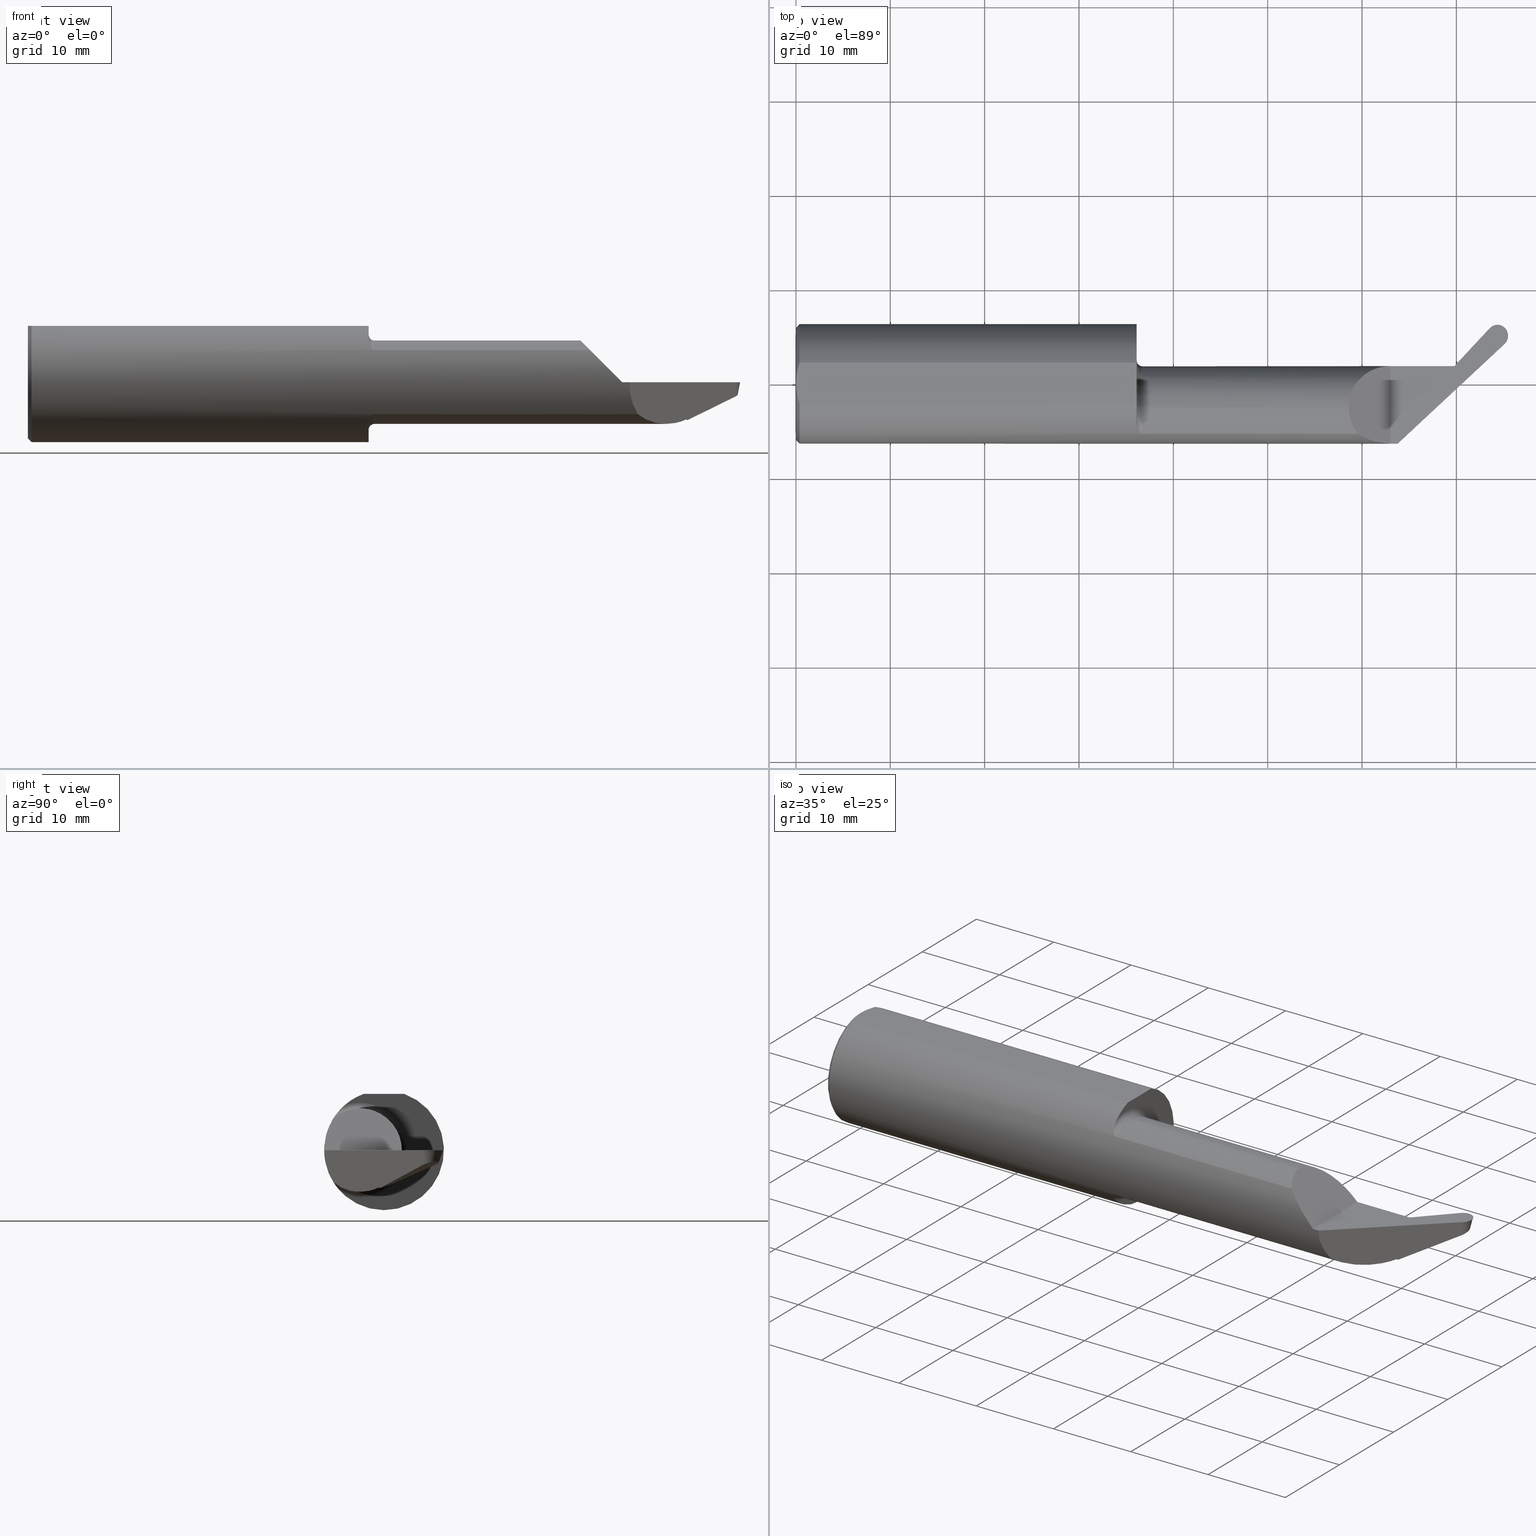
[diagram: canonical four-view strip — front | top / right | iso, engineering-drawing reading convention]
A machine part, canonical four-view strip (front | top / right | iso — engineering-drawing reading convention). The complete STEP part file that produces these views, byte-faithful:
ISO-10303-21;
HEADER;
FILE_DESCRIPTION (( 'STEP AP203' ),
    '1' );
FILE_NAME ('220332-UP50093-24.STEP',
    '2025-04-15T20:41:12',
    ( '' ),
    ( '' ),
    'SwSTEP 2.0',
    'SolidWorks 2024',
    '' );
FILE_SCHEMA (( 'CONFIG_CONTROL_DESIGN' ));
ENDSEC;

DATA;
#1 = FACE_OUTER_BOUND ( 'NONE', #354, .T. ) ;
#2 = CARTESIAN_POINT ( 'NONE',  ( 3.002607543141457835, 0.2121185785152265024, -0.06737581554759505820 ) ) ;
#3 = CARTESIAN_POINT ( 'NONE',  ( 0.01500000000000188856, 0.000000000000000000, -0.2498499999999999888 ) ) ;
#4 = B_SPLINE_CURVE_WITH_KNOTS ( 'NONE', 3,
 ( #388, #136, #638, #384, #79, #328, #574, #13, #649, #287, #474, #721, #282, #151, #730, #802, #156, #164, #470 ),
 .UNSPECIFIED., .F., .F.,
 ( 4, 2, 1, 2, 2, 2, 2, 2, 2, 4 ),
 ( 0.000000000000000000, 0.2499999999999941158, 0.3749999999999911737, 0.4374999999999911737, 0.4999999999999912292, 0.6249999999999907851, 0.7499999999999903411, 0.8124999999999901190, 0.8749999999999897859, 1.000000000000000000 ),
 .UNSPECIFIED. ) ;
#5 = CARTESIAN_POINT ( 'NONE',  ( 2.751504638639514333, -0.01768368298314590761, -0.1585832699261204293 ) ) ;
#6 = CIRCLE ( 'NONE', #452, 0.1740000000000005431 ) ;
#7 = CARTESIAN_POINT ( 'NONE',  ( 2.899864875046809232, 0.2141097404964387163, -0.06043123313489502657 ) ) ;
#8 = CARTESIAN_POINT ( 'NONE',  ( 2.962439320579158597, 0.1930114062578003609, -0.05007017779264168189 ) ) ;
#9 = EDGE_CURVE ( 'NONE', #97, #814, #728, .T. ) ;
#10 = CARTESIAN_POINT ( 'NONE',  ( 1.421699999999999964, 0.000000000000000000, 0.000000000000000000 ) ) ;
#11 = FACE_OUTER_BOUND ( 'NONE', #550, .T. ) ;
#12 = CARTESIAN_POINT ( 'NONE',  ( 2.096954927754681730, -0.2109115923885824251, -0.1339452227446445709 ) ) ;
#13 = CARTESIAN_POINT ( 'NONE',  ( 2.962147998355271206, 0.2298195036112811729, -5.549066237130534971E-17 ) ) ;
#14 = CARTESIAN_POINT ( 'NONE',  ( 3.000000000000000444, 0.000000000000000000, 0.000000000000000000 ) ) ;
#15 = PERSON ( 'UNSPECIFIED', 'UNSPECIFIED', 'UNSPECIFIED', ('UNSPECIFIED'), ('UNSPECIFIED'), ('UNSPECIFIED') ) ;
#16 = CARTESIAN_POINT ( 'NONE',  ( 2.744463120595628247, 0.02262425438726834923, -0.1236489610651902854 ) ) ;
#17 = CARTESIAN_POINT ( 'NONE',  ( 0.000000000000000000, 0.000000000000000000, 0.2348499999999984211 ) ) ;
#18 = CARTESIAN_POINT ( 'NONE',  ( 2.731886890911535026, 0.06820596704990193604, -0.04548531219329627479 ) ) ;
#19 = AXIS2_PLACEMENT_3D ( 'NONE', #275, #94, #149 ) ;
#20 = CARTESIAN_POINT ( 'NONE',  ( 0.006561672718762610358, -0.05761982577936750755, 0.2348499999999999477 ) ) ;
#21 = DIRECTION ( 'NONE',  ( 0.9684408309910902402, 0.000000000000000000, 0.2492435693639583894 ) ) ;
#22 = APPLICATION_CONTEXT ( 'configuration controlled 3d designs of mechanical parts and assemblies' ) ;
#23 = CARTESIAN_POINT ( 'NONE',  ( 2.729262707662182486, 0.05521386511994788582, -0.07917076052382532314 ) ) ;
#24 = EDGE_CURVE ( 'NONE', #809, #554, #758, .T. ) ;
#25 = EDGE_CURVE ( 'NONE', #526, #680, #660, .T. ) ;
#26 = CARTESIAN_POINT ( 'NONE',  ( 2.747209855509363585, -0.09985000000000000819, 0.000000000000000000 ) ) ;
#27 = DIRECTION ( 'NONE',  ( -0.000000000000000000, 1.000000000000000000, 1.224646799147353207E-16 ) ) ;
#28 = ORIENTED_EDGE ( 'NONE', *, *, #521, .T. ) ;
#29 = CARTESIAN_POINT ( 'NONE',  ( 2.747209855509363141, 0.07415000000000039615, 1.912293595564984056E-15 ) ) ;
#30 = DIRECTION ( 'NONE',  ( -1.000000000000000000, -0.000000000000000000, -0.000000000000000000 ) ) ;
#31 = CARTESIAN_POINT ( 'NONE',  ( 2.896851391434541068, 0.2266629327936346971, -0.02025503832286652123 ) ) ;
#32 = ORIENTED_EDGE ( 'NONE', *, *, #545, .T. ) ;
#33 = PERSON_AND_ORGANIZATION_ROLE ( 'creator' ) ;
#34 = VECTOR ( 'NONE', #250, 39.37007874015748143 ) ;
#35 = CIRCLE ( 'NONE', #48, 0.1990000000000005653 ) ;
#36 = CARTESIAN_POINT ( 'NONE',  ( 1.446699999999999875, -0.09985000000000000819, 0.000000000000000000 ) ) ;
#37 = ADVANCED_FACE ( 'NONE', ( #1 ), #297, .T. ) ;
#38 = CARTESIAN_POINT ( 'NONE',  ( 1.446699999999999875, -0.09985000000000000819, 0.000000000000000000 ) ) ;
#39 = ORIENTED_EDGE ( 'NONE', *, *, #61, .T. ) ;
#40 = CARTESIAN_POINT ( 'NONE',  ( 2.747209855509363585, -0.02183442268399144945, -0.1555299639813816637 ) ) ;
#41 = ORIENTED_EDGE ( 'NONE', *, *, #828, .F. ) ;
#42 = CARTESIAN_POINT ( 'NONE',  ( 1.421699999999999964, 0.09915000000000054325, 0.000000000000000000 ) ) ;
#43 = CC_DESIGN_PERSON_AND_ORGANIZATION_ASSIGNMENT ( #724, #796, ( #579 ) ) ;
#44 = UNCERTAINTY_MEASURE_WITH_UNIT (LENGTH_MEASURE( 1.000000000000000082E-05 ), #98, 'distance_accuracy_value', 'NONE');
#45 = CARTESIAN_POINT ( 'NONE',  ( 1.440516232719195600, -0.2096312696626556893, 0.1359431843828258490 ) ) ;
#46 = ORIENTED_EDGE ( 'NONE', *, *, #386, .T. ) ;
#47 = VECTOR ( 'NONE', #821, 39.37007874015748143 ) ;
#48 = AXIS2_PLACEMENT_3D ( 'NONE', #215, #212, #265 ) ;
#49 = LINE ( 'NONE', #364, #88 ) ;
#50 = VERTEX_POINT ( 'NONE', #445 ) ;
#51 = COORDINATED_UNIVERSAL_TIME_OFFSET ( 8, 0, .BEHIND. ) ;
#52 = DIRECTION ( 'NONE',  ( 1.000000000000000000, -0.000000000000000000, -0.000000000000000000 ) ) ;
#53 = CC_DESIGN_PERSON_AND_ORGANIZATION_ASSIGNMENT ( #189, #749, ( #221 ) ) ;
#54 = CARTESIAN_POINT ( 'NONE',  ( 1.422069308096891360, -0.1740236709403993609, 0.1794003879942989710 ) ) ;
#55 = VERTEX_POINT ( 'NONE', #693 ) ;
#56 = CARTESIAN_POINT ( 'NONE',  ( 2.900466145987874445, 0.2116050413783891471, -0.06844746337576990136 ) ) ;
#57 = CARTESIAN_POINT ( 'NONE',  ( 2.763300752746063349, 0.02618643636908387848, -0.1442566840611751167 ) ) ;
#58 = ORIENTED_EDGE ( 'NONE', *, *, #25, .F. ) ;
#59 = CARTESIAN_POINT ( 'NONE',  ( 2.957974785325564238, 0.2900550178229164833, -0.02573937038413870795 ) ) ;
#60 = CARTESIAN_POINT ( 'NONE',  ( 1.446699999999999875, -0.09985000000000000819, 0.1740000000000005431 ) ) ;
#61 = EDGE_CURVE ( 'NONE', #75, #205, #790, .T. ) ;
#62 = ORIENTED_EDGE ( 'NONE', *, *, #72, .F. ) ;
#63 = SECURITY_CLASSIFICATION_LEVEL ( 'unclassified' ) ;
#64 = EDGE_CURVE ( 'NONE', #295, #814, #154, .T. ) ;
#65 = CARTESIAN_POINT ( 'NONE',  ( 2.948771948513080776, 0.2570070445158513794, -0.08473613274469374290 ) ) ;
#66 = CARTESIAN_POINT ( 'NONE',  ( 2.960480694355561049, 0.1770424270345043460, -0.05468413068345496370 ) ) ;
#67 = ORIENTED_EDGE ( 'NONE', *, *, #64, .T. ) ;
#68 = CARTESIAN_POINT ( 'NONE',  ( 2.949180563343566597, 0.2584744064049563916, -0.08211661959448285364 ) ) ;
#69 = CARTESIAN_POINT ( 'NONE',  ( 2.480000000000000426, 0.07415000000000021574, -5.549066237130534971E-17 ) ) ;
#70 = CARTESIAN_POINT ( 'NONE',  ( 2.747209855509363585, -0.02183442268399144945, -0.1555299639813816637 ) ) ;
#71 = CARTESIAN_POINT ( 'NONE',  ( 2.957842952214381427, 0.2895815967215180642, -0.02658451486404572392 ) ) ;
#72 = EDGE_CURVE ( 'NONE', #50, #642, #4, .T. ) ;
#73 = CARTESIAN_POINT ( 'NONE',  ( 2.747209855509363585, 0.02761542476122566189, -0.1184422453791050822 ) ) ;
#74 = AXIS2_PLACEMENT_3D ( 'NONE', #595, #716, #278 ) ;
#75 = VERTEX_POINT ( 'NONE', #40 ) ;
#76 =( GEOMETRIC_REPRESENTATION_CONTEXT ( 3 ) GLOBAL_UNCERTAINTY_ASSIGNED_CONTEXT ( ( #44 ) ) GLOBAL_UNIT_ASSIGNED_CONTEXT ( ( #98, #539, #413 ) ) REPRESENTATION_CONTEXT ( 'NONE', 'WORKASPACE' ) );
#77 = DIRECTION ( 'NONE',  ( 0.7064334285460602825, -0.6587598294711697333, 0.2588190451025078054 ) ) ;
#78 = CARTESIAN_POINT ( 'NONE',  ( 2.955307325912614580, 0.2154066485880409554, -0.04614193952960542883 ) ) ;
#79 = CARTESIAN_POINT ( 'NONE',  ( 2.970764410099808295, 0.2139681964824744209, -5.549066237130534971E-17 ) ) ;
#80 = CARTESIAN_POINT ( 'NONE',  ( 2.913796884223087247, 0.1298489285363535473, -0.07884494127364106986 ) ) ;
#81 = CARTESIAN_POINT ( 'NONE',  ( 2.957472544011955140, 0.2121065175662257829, -0.04643402732543520234 ) ) ;
#82 = EDGE_LOOP ( 'NONE', ( #168, #247, #491, #365 ) ) ;
#83 = DIRECTION ( 'NONE',  ( 0.000000000000000000, 0.000000000000000000, 1.000000000000000000 ) ) ;
#84 = CARTESIAN_POINT ( 'NONE',  ( 0.000000000000000000, 0.000000000000000000, 0.2348499999999984211 ) ) ;
#85 = ORIENTED_EDGE ( 'NONE', *, *, #735, .F. ) ;
#86 = EDGE_CURVE ( 'NONE', #416, #535, #725, .T. ) ;
#87 = CARTESIAN_POINT ( 'NONE',  ( 2.812514212129471503, 0.01325270226123439164, -0.3332439233195600425 ) ) ;
#88 = VECTOR ( 'NONE', #430, 39.37007874015748143 ) ;
#89 = EDGE_CURVE ( 'NONE', #795, #475, #537, .T. ) ;
#90 = AXIS2_PLACEMENT_3D ( 'NONE', #95, #793, #720 ) ;
#91 = FACE_OUTER_BOUND ( 'NONE', #495, .T. ) ;
#92 = CARTESIAN_POINT ( 'NONE',  ( 2.096954927754681730, -0.2109115923885824251, 0.1339452227446445709 ) ) ;
#93 = ORIENTED_EDGE ( 'NONE', *, *, #692, .T. ) ;
#94 = DIRECTION ( 'NONE',  ( 0.7064334285460631691, -0.6587598294711664026, 0.2588190451025078609 ) ) ;
#95 = CARTESIAN_POINT ( 'NONE',  ( 1.446699999999999875, -0.09985000000000000819, 0.000000000000000000 ) ) ;
#96 = FACE_OUTER_BOUND ( 'NONE', #538, .T. ) ;
#97 = VERTEX_POINT ( 'NONE', #340 ) ;
#98 =( CONVERSION_BASED_UNIT ( 'INCH', #732 ) LENGTH_UNIT ( ) NAMED_UNIT ( #441 ) );
#99 = ADVANCED_FACE ( 'NONE', ( #585 ), #662, .F. ) ;
#100 = CARTESIAN_POINT ( 'NONE',  ( 2.578040489233801136, -0.1793692571805418912, -0.1600987644990817527 ) ) ;
#101 = DIRECTION ( 'NONE',  ( -0.000000000000000000, 1.000000000000000000, -0.000000000000000000 ) ) ;
#102 = EDGE_LOOP ( 'NONE', ( #515, #753, #307, #650, #726, #345, #58, #738, #120, #181, #185, #231, #667 ) ) ;
#103 = AXIS2_PLACEMENT_3D ( 'NONE', #10, #767, #512 ) ;
#104 = AXIS2_PLACEMENT_3D ( 'NONE', #42, #220, #289 ) ;
#105 = CARTESIAN_POINT ( 'NONE',  ( 2.346054777255357937, -0.2109115923885825639, 0.1339452227446444599 ) ) ;
#106 = ORIENTED_EDGE ( 'NONE', *, *, #158, .T. ) ;
#107 = DIRECTION ( 'NONE',  ( -0.2418447626479793000, -0.2418447626479767743, 0.9396926207859069846 ) ) ;
#108 = VERTEX_POINT ( 'NONE', #653 ) ;
#109 = CARTESIAN_POINT ( 'NONE',  ( 0.000000000000000000, 0.000000000000000000, 0.2348499999999984211 ) ) ;
#110 = CARTESIAN_POINT ( 'NONE',  ( 1.421699999999999964, 0.000000000000000000, 0.000000000000000000 ) ) ;
#111 = ORIENTED_EDGE ( 'NONE', *, *, #268, .F. ) ;
#112 = EDGE_CURVE ( 'NONE', #795, #535, #451, .T. ) ;
#113 = CARTESIAN_POINT ( 'NONE',  ( 0.01031857118576193569, -0.07154970585445760700, 0.2348500000000000587 ) ) ;
#114 = AXIS2_PLACEMENT_3D ( 'NONE', #415, #107, #21 ) ;
#115 = CIRCLE ( 'NONE', #439, 0.2348499999999984211 ) ;
#116 = CARTESIAN_POINT ( 'NONE',  ( 2.948155640226699070, 0.1610829347178983351, -0.06196360619533933939 ) ) ;
#117 = ORIENTED_EDGE ( 'NONE', *, *, #353, .T. ) ;
#118 = CARTESIAN_POINT ( 'NONE',  ( 2.899133177438635300, 0.2171577546755478483, -0.05067613590139267987 ) ) ;
#119 = CARTESIAN_POINT ( 'NONE',  ( 1.439279013400958540, -0.2089922484211624576, 0.1369264698045249695 ) ) ;
#120 = ORIENTED_EDGE ( 'NONE', *, *, #641, .T. ) ;
#121 = CARTESIAN_POINT ( 'NONE',  ( 2.947670188464210472, 0.1607987072594016520, -0.06549177879366845090 ) ) ;
#122 = ADVANCED_FACE ( 'NONE', ( #794 ), #762, .F. ) ;
#123 = CARTESIAN_POINT ( 'NONE',  ( 2.306000000000002270, 0.002076840147081597272, 0.1740000000000002378 ) ) ;
#124 = EDGE_LOOP ( 'NONE', ( #774, #609, #129, #162 ) ) ;
#125 = CARTESIAN_POINT ( 'NONE',  ( 2.959534747762816220, 0.1677452955637667442, 0.02073761873448220702 ) ) ;
#126 = DIRECTION ( 'NONE',  ( -0.6815829050885323648, 0.7309081807046559076, 0.03489949670248779917 ) ) ;
#127 = TOROIDAL_SURFACE ( 'NONE', #141, 0.1990000000000005653, 0.02499999999999993894 ) ;
#128 = APPROVAL ( #533, 'UNSPECIFIED' ) ;
#129 = ORIENTED_EDGE ( 'NONE', *, *, #217, .T. ) ;
#130 = CARTESIAN_POINT ( 'NONE',  ( 2.948064644135991674, 0.1610296573593767711, -0.06262494876033947167 ) ) ;
#131 = CARTESIAN_POINT ( 'NONE',  ( 2.922878319623031018, 0.2286196713913474510, -0.05108747689202468995 ) ) ;
#132 = DIRECTION ( 'NONE',  ( -1.000000000000000000, -0.000000000000000000, -0.000000000000000000 ) ) ;
#133 = ADVANCED_FACE ( 'NONE', ( #96 ), #424, .F. ) ;
#134 = CARTESIAN_POINT ( 'NONE',  ( 2.959354166487394355, 0.2950084634555291130, -0.01689655112463348333 ) ) ;
#135 = CARTESIAN_POINT ( 'NONE',  ( 2.943291903478197913, 0.2258680402186392100, -0.04654189394297871679 ) ) ;
#136 = CARTESIAN_POINT ( 'NONE',  ( 2.965952434464957932, 0.1747368823657588777, -5.549066237130536820E-17 ) ) ;
#137 = CARTESIAN_POINT ( 'NONE',  ( 2.742935276533843503, 0.02000971208805929838, -0.1261334587576465882 ) ) ;
#138 = DIRECTION ( 'NONE',  ( -1.000000000000000000, -0.000000000000000000, -0.000000000000000000 ) ) ;
#139 = AXIS2_PLACEMENT_3D ( 'NONE', #808, #234, #171 ) ;
#140 = ORIENTED_EDGE ( 'NONE', *, *, #588, .T. ) ;
#141 = AXIS2_PLACEMENT_3D ( 'NONE', #393, #643, #83 ) ;
#142 = CYLINDRICAL_SURFACE ( 'NONE', #567, 0.2498499999999999888 ) ;
#143 = CARTESIAN_POINT ( 'NONE',  ( 2.951794713211804311, 0.2195101674456243213, -0.04598986048155225687 ) ) ;
#144 = CARTESIAN_POINT ( 'NONE',  ( 1.446699999999999875, -0.2109115923885826471, -0.1339452227446448762 ) ) ;
#145 = CARTESIAN_POINT ( 'NONE',  ( 1.421699999999999964, -0.08526722699841969566, 0.2348499999999999477 ) ) ;
#146 = ADVANCED_FACE ( 'NONE', ( #581 ), #218, .F. ) ;
#147 = CC_DESIGN_DATE_AND_TIME_ASSIGNMENT ( #284, #484, ( #172 ) ) ;
#148 = CARTESIAN_POINT ( 'NONE',  ( 1.434235956346823881, -0.2051861511868701415, -0.1425927214055048575 ) ) ;
#149 = DIRECTION ( 'NONE',  ( 0.6819983600625044717, 0.7313537016191649087, 0.000000000000000000 ) ) ;
#150 = DIRECTION ( 'NONE',  ( -1.000000000000000000, -0.000000000000000000, -0.000000000000000000 ) ) ;
#151 = CARTESIAN_POINT ( 'NONE',  ( 2.921874253656308706, 0.2469210718378983260, -5.549066237130534971E-17 ) ) ;
#152 = ORIENTED_EDGE ( 'NONE', *, *, #616, .T. ) ;
#153 = CARTESIAN_POINT ( 'NONE',  ( 2.733139793779888027, 0.06967497622605479946, -0.03964660771062596817 ) ) ;
#154 = CIRCLE ( 'NONE', #673, 0.2348499999999984211 ) ;
#155 = CARTESIAN_POINT ( 'NONE',  ( 1.421699999999999964, -0.1642165498247359634, -0.1883028073706284611 ) ) ;
#156 = CARTESIAN_POINT ( 'NONE',  ( 2.904555535937459965, 0.2410871652575488633, -5.549066237130534971E-17 ) ) ;
#157 = ORIENTED_EDGE ( 'NONE', *, *, #545, .F. ) ;
#158 = EDGE_CURVE ( 'NONE', #642, #761, #196, .T. ) ;
#159 = CARTESIAN_POINT ( 'NONE',  ( 2.895332127941881772, 0.2329916902143804036, -5.549066237130534971E-17 ) ) ;
#160 = DIRECTION ( 'NONE',  ( 0.000000000000000000, 0.000000000000000000, 1.000000000000000000 ) ) ;
#161 = ADVANCED_BREP_SHAPE_REPRESENTATION ( '220332-UP50093-24', ( #620, #647 ), #76 ) ;
#162 = ORIENTED_EDGE ( 'NONE', *, *, #553, .T. ) ;
#163 = CARTESIAN_POINT ( 'NONE',  ( 2.319901235500921199, -0.1793692571805419744, 0.1600987644990815861 ) ) ;
#164 = CARTESIAN_POINT ( 'NONE',  ( 2.899611671649599653, 0.2375721085925909526, -5.549066237130535587E-17 ) ) ;
#165 = ORIENTED_EDGE ( 'NONE', *, *, #497, .F. ) ;
#166 = VECTOR ( 'NONE', #628, 39.37007874015748143 ) ;
#167 = DIRECTION ( 'NONE',  ( -1.000000000000000000, -0.000000000000000000, -0.000000000000000000 ) ) ;
#168 = ORIENTED_EDGE ( 'NONE', *, *, #64, .F. ) ;
#169 = MECHANICAL_CONTEXT ( 'NONE', #22, 'mechanical' ) ;
#170 = EDGE_CURVE ( 'NONE', #670, #108, #244, .T. ) ;
#171 = DIRECTION ( 'NONE',  ( 0.000000000000000000, 0.000000000000000000, 1.000000000000000000 ) ) ;
#172 = PRODUCT_DEFINITION ( 'UNKNOWN', '', #579, #379 ) ;
#173 = ORIENTED_EDGE ( 'NONE', *, *, #362, .T. ) ;
#174 = DIRECTION ( 'NONE',  ( 0.000000000000000000, 0.000000000000000000, 1.000000000000000000 ) ) ;
#175 = CARTESIAN_POINT ( 'NONE',  ( 2.747209855509363585, -0.02183442268399144945, -0.1555299639813816637 ) ) ;
#176 = VERTEX_POINT ( 'NONE', #798 ) ;
#177 = CARTESIAN_POINT ( 'NONE',  ( 2.996074599492827506, 0.2068322640363979559, -0.08425090740923270316 ) ) ;
#178 = CIRCLE ( 'NONE', #702, 0.02499999999999993894 ) ;
#179 = LOCAL_TIME ( 13, 41, 12.00000000000000000, #51 ) ;
#180 = CARTESIAN_POINT ( 'NONE',  ( 1.435992829746334909, -0.2068995363356183614, 0.1400856398677452486 ) ) ;
#181 = ORIENTED_EDGE ( 'NONE', *, *, #302, .T. ) ;
#182 = ADVANCED_FACE ( 'NONE', ( #461 ), #657, .T. ) ;
#183 = CARTESIAN_POINT ( 'NONE',  ( 2.895192027772587551, 0.2335753019383076667, 0.001867835508298109747 ) ) ;
#184 = DIRECTION ( 'NONE',  ( -1.000000000000000000, -0.000000000000000000, -0.000000000000000000 ) ) ;
#185 = ORIENTED_EDGE ( 'NONE', *, *, #426, .T. ) ;
#186 = CARTESIAN_POINT ( 'NONE',  ( 3.017350786043984101, 0.2240484867778349543, -0.02929289433089351732 ) ) ;
#187 = CARTESIAN_POINT ( 'NONE',  ( 0.000000000000000000, 0.000000000000000000, -0.2348499999999984211 ) ) ;
#188 = ORIENTED_EDGE ( 'NONE', *, *, #386, .F. ) ;
#189 = PERSON_AND_ORGANIZATION ( #15, #245 ) ;
#190 = CARTESIAN_POINT ( 'NONE',  ( 2.950632300370629402, 0.1625329960271321150, -0.04396370356837207838 ) ) ;
#191 = VECTOR ( 'NONE', #290, 39.37007874015748143 ) ;
#192 = DIRECTION ( 'NONE',  ( -1.000000000000000000, -0.000000000000000000, -0.000000000000000000 ) ) ;
#193 = AXIS2_PLACEMENT_3D ( 'NONE', #406, #150, #174 ) ;
#194 = CARTESIAN_POINT ( 'NONE',  ( 1.429865546287361067, -0.1999563293643358275, -0.1499285236170141977 ) ) ;
#195 = CARTESIAN_POINT ( 'NONE',  ( 2.948048981287322956, 0.2544108231478146021, -0.08937086945503378010 ) ) ;
#196 = B_SPLINE_CURVE_WITH_KNOTS ( 'NONE', 3,
 ( #782, #31, #214, #347 ),
 .UNSPECIFIED., .F., .F.,
 ( 4, 4 ),
 ( 0.000000000000000000, 1.000000000000000000 ),
 .UNSPECIFIED. ) ;
#197 = LINE ( 'NONE', #830, #517 ) ;
#198 = ORIENTED_EDGE ( 'NONE', *, *, #233, .F. ) ;
#199 = CARTESIAN_POINT ( 'NONE',  ( 2.747209855509363141, 0.07415000000000039615, 1.912293595564984056E-15 ) ) ;
#200 = LINE ( 'NONE', #691, #166 ) ;
#201 = CARTESIAN_POINT ( 'NONE',  ( 1.439237473186052441, -0.2089699405038890068, -0.1369606145290533650 ) ) ;
#202 = CYLINDRICAL_SURFACE ( 'NONE', #19, 2.000000000000000888 ) ;
#203 = DIRECTION ( 'NONE',  ( 0.5720007877782445904, 0.7467417517062161503, 0.3393992560978874029 ) ) ;
#204 = AXIS2_PLACEMENT_3D ( 'NONE', #274, #27, #407 ) ;
#205 = VERTEX_POINT ( 'NONE', #227 ) ;
#206 = CIRCLE ( 'NONE', #807, 0.2498499999999999888 ) ;
#207 = FACE_OUTER_BOUND ( 'NONE', #124, .T. ) ;
#208 = EDGE_CURVE ( 'NONE', #547, #600, #812, .T. ) ;
#209 = EDGE_CURVE ( 'NONE', #205, #55, #715, .T. ) ;
#210 = CARTESIAN_POINT ( 'NONE',  ( 2.960638247896683506, 0.2038707456120415762, -0.04773888955564064424 ) ) ;
#211 = CARTESIAN_POINT ( 'NONE',  ( 1.440484743460166417, -0.2096175062667572919, -0.1359644531973617232 ) ) ;
#212 = DIRECTION ( 'NONE',  ( -1.000000000000000000, -0.000000000000000000, -0.000000000000000000 ) ) ;
#213 = DIRECTION ( 'NONE',  ( 1.000000000000000000, -0.000000000000000000, -0.000000000000000000 ) ) ;
#214 = CARTESIAN_POINT ( 'NONE',  ( 2.898370654927185708, 0.2203341753729427532, -0.04051007664555637128 ) ) ;
#215 = CARTESIAN_POINT ( 'NONE',  ( 1.421699999999999964, -0.09985000000000000819, 0.000000000000000000 ) ) ;
#216 = CARTESIAN_POINT ( 'NONE',  ( 2.480000000000000426, 0.2500000000000000000, -5.549066237130534971E-17 ) ) ;
#217 = EDGE_CURVE ( 'NONE', #235, #315, #178, .T. ) ;
#218 = PLANE ( 'NONE',  #114 ) ;
#219 = ORIENTED_EDGE ( 'NONE', *, *, #316, .T. ) ;
#220 = DIRECTION ( 'NONE',  ( 1.000000000000000000, 0.000000000000000000, 0.000000000000000000 ) ) ;
#221 = SECURITY_CLASSIFICATION ( '', '', #63 ) ;
#222 = CARTESIAN_POINT ( 'NONE',  ( 2.662602659211939837, -0.09984999999999999432, -0.1740000000000002378 ) ) ;
#223 = CARTESIAN_POINT ( 'NONE',  ( 0.000000000000000000, 0.1499999999999999944, 0.2348499999999999477 ) ) ;
#224 = ORIENTED_EDGE ( 'NONE', *, *, #293, .F. ) ;
#225 = PERSON_AND_ORGANIZATION ( #15, #245 ) ;
#226 = CARTESIAN_POINT ( 'NONE',  ( 0.01500000000000188856, -0.08526722699841957076, 0.2348499999999999477 ) ) ;
#227 = CARTESIAN_POINT ( 'NONE',  ( 2.751504638639514333, -0.01768368298314590761, -0.1585832699261204293 ) ) ;
#228 = ORIENTED_EDGE ( 'NONE', *, *, #327, .F. ) ;
#229 = PERSON_AND_ORGANIZATION ( #15, #245 ) ;
#230 = DIRECTION ( 'NONE',  ( -1.000000000000000000, 0.000000000000000000, 0.000000000000000000 ) ) ;
#231 = ORIENTED_EDGE ( 'NONE', *, *, #352, .F. ) ;
#232 = AXIS2_PLACEMENT_3D ( 'NONE', #469, #213, #672 ) ;
#233 = EDGE_CURVE ( 'NONE', #349, #75, #598, .T. ) ;
#234 = DIRECTION ( 'NONE',  ( -1.000000000000000000, -0.000000000000000000, -0.000000000000000000 ) ) ;
#235 = VERTEX_POINT ( 'NONE', #682 ) ;
#236 = CARTESIAN_POINT ( 'NONE',  ( 2.306000000000002714, -0.1408247075240017798, 0.1740000000000002378 ) ) ;
#237 = CARTESIAN_POINT ( 'NONE',  ( 3.071110365634574180, 0.4375321322731714480, 0.04082931226868764113 ) ) ;
#238 = ORIENTED_EDGE ( 'NONE', *, *, #478, .T. ) ;
#239 = DIRECTION ( 'NONE',  ( 0.000000000000000000, 0.000000000000000000, -1.000000000000000000 ) ) ;
#240 = DIRECTION ( 'NONE',  ( 0.000000000000000000, 0.000000000000000000, 1.000000000000000000 ) ) ;
#241 = ADVANCED_FACE ( 'NONE', ( #679 ), #556, .T. ) ;
#242 = ORIENTED_EDGE ( 'NONE', *, *, #400, .F. ) ;
#243 = CARTESIAN_POINT ( 'NONE',  ( 3.023482512856738857, 0.2290101454070870568, -0.01345417616763593290 ) ) ;
#244 = CIRCLE ( 'NONE', #204, 0.02499999999999993894 ) ;
#245 = ORGANIZATION ( 'UNSPECIFIED', 'UNSPECIFIED', '' ) ;
#246 = CARTESIAN_POINT ( 'NONE',  ( 2.767478795634873201, 0.03684827362463462264, -0.1404374061272524454 ) ) ;
#247 = ORIENTED_EDGE ( 'NONE', *, *, #497, .T. ) ;
#248 = CARTESIAN_POINT ( 'NONE',  ( 2.896144737199331409, 0.2296066244286029956, -0.01083382292244053705 ) ) ;
#249 = CC_DESIGN_DATE_AND_TIME_ASSIGNMENT ( #436, #496, ( #221 ) ) ;
#250 = DIRECTION ( 'NONE',  ( 0.6819983600625076914, 0.7313537016191619111, 0.000000000000000000 ) ) ;
#251 = ORIENTED_EDGE ( 'NONE', *, *, #9, .F. ) ;
#252 = CARTESIAN_POINT ( 'NONE',  ( 2.956181801799234066, 0.2836162997488710369, -0.03723367645223014250 ) ) ;
#253 = DIRECTION ( 'NONE',  ( 1.000000000000000000, 0.000000000000000000, 0.000000000000000000 ) ) ;
#254 = CARTESIAN_POINT ( 'NONE',  ( 0.01500000000000188856, 0.000000000000000000, 0.000000000000000000 ) ) ;
#255 = CARTESIAN_POINT ( 'NONE',  ( 2.898451566576593308, 0.2199971237663236878, -0.04158880233473093158 ) ) ;
#256 = EDGE_CURVE ( 'NONE', #349, #108, #49, .T. ) ;
#257 = AXIS2_PLACEMENT_3D ( 'NONE', #263, #192, #440 ) ;
#258 = AXIS2_PLACEMENT_3D ( 'NONE', #216, #286, #534 ) ;
#259 = CARTESIAN_POINT ( 'NONE',  ( 2.960434250180852267, 0.2045820455321669673, -0.04760832730743851798 ) ) ;
#260 = CIRCLE ( 'NONE', #90, 0.1740000000000005431 ) ;
#261 = CARTESIAN_POINT ( 'NONE',  ( 0.000000000000000000, 0.000000000000000000, 0.000000000000000000 ) ) ;
#262 = CARTESIAN_POINT ( 'NONE',  ( 2.731118852781456052, 0.04614295590628650356, -0.09485372060500768532 ) ) ;
#263 = CARTESIAN_POINT ( 'NONE',  ( 1.421699999999999964, -0.09985000000000000819, 0.000000000000000000 ) ) ;
#264 = ORIENTED_EDGE ( 'NONE', *, *, #362, .F. ) ;
#265 = DIRECTION ( 'NONE',  ( 0.000000000000000000, 0.000000000000000000, 1.000000000000000000 ) ) ;
#266 = LINE ( 'NONE', #3, #361 ) ;
#267 = ORIENTED_EDGE ( 'NONE', *, *, #170, .T. ) ;
#268 = EDGE_CURVE ( 'NONE', #526, #532, #552, .T. ) ;
#269 = DIRECTION ( 'NONE',  ( -1.000000000000000000, -0.000000000000000000, -0.000000000000000000 ) ) ;
#270 = CARTESIAN_POINT ( 'NONE',  ( 2.899889918419837453, 0.2140054179522422328, -0.06076511496828727876 ) ) ;
#271 = VERTEX_POINT ( 'NONE', #367 ) ;
#272 = PLANE ( 'NONE',  #104 ) ;
#273 = CARTESIAN_POINT ( 'NONE',  ( 2.747209855509363585, 0.02761542476122566189, -0.1184422453791050822 ) ) ;
#274 = CARTESIAN_POINT ( 'NONE',  ( 1.446699999999999875, -0.09984999999999999432, -0.1990000000000005653 ) ) ;
#275 = CARTESIAN_POINT ( 'NONE',  ( 3.805211594117097196, 1.657282468372985651, -0.7901417016499493462 ) ) ;
#276 = EDGE_CURVE ( 'NONE', #176, #475, #321, .T. ) ;
#277 = CARTESIAN_POINT ( 'NONE',  ( 2.584952230521400551, -0.09984999999999510933, -1.927233389280335746E-15 ) ) ;
#278 = DIRECTION ( 'NONE',  ( 0.000000000000000000, 0.000000000000000000, 1.000000000000000000 ) ) ;
#279 = VERTEX_POINT ( 'NONE', #747 ) ;
#280 = DIRECTION ( 'NONE',  ( 1.000000000000000000, 0.000000000000000000, 0.000000000000000000 ) ) ;
#281 = DIRECTION ( 'NONE',  ( 0.000000000000000000, 0.000000000000000000, -1.000000000000000000 ) ) ;
#282 = CARTESIAN_POINT ( 'NONE',  ( 2.924897144155737649, 0.2472028725232965629, -5.549066237130537436E-17 ) ) ;
#283 = ORIENTED_EDGE ( 'NONE', *, *, #293, .T. ) ;
#284 = DATE_AND_TIME ( #592, #481 ) ;
#285 = VECTOR ( 'NONE', #325, 39.37007874015748143 ) ;
#286 = DIRECTION ( 'NONE',  ( -0.000000000000000000, 0.000000000000000000, -1.000000000000000000 ) ) ;
#287 = CARTESIAN_POINT ( 'NONE',  ( 2.951246278421888025, 0.2404503415977134739, -5.549066237130534971E-17 ) ) ;
#288 = VERTEX_POINT ( 'NONE', #116 ) ;
#289 = DIRECTION ( 'NONE',  ( 0.000000000000000000, 0.000000000000000000, -1.000000000000000000 ) ) ;
#290 = DIRECTION ( 'NONE',  ( 1.000000000000000000, 0.000000000000000000, 0.000000000000000000 ) ) ;
#291 = ORIENTED_EDGE ( 'NONE', *, *, #828, .T. ) ;
#292 = COORDINATED_UNIVERSAL_TIME_OFFSET ( 8, 0, .BEHIND. ) ;
#293 = EDGE_CURVE ( 'NONE', #818, #642, #825, .T. ) ;
#294 = CARTESIAN_POINT ( 'NONE',  ( 1.443366560440264124, -0.2105968497256106853, 0.1344424988095974383 ) ) ;
#295 = VERTEX_POINT ( 'NONE', #187 ) ;
#296 = PERSON_AND_ORGANIZATION_ROLE ( 'design_owner' ) ;
#297 = CONICAL_SURFACE ( 'NONE', #734, 0.2498499999999999888, 0.7853981633974380649 ) ;
#298 = APPROVAL_PERSON_ORGANIZATION ( #671, #569, #597 ) ;
#299 = CARTESIAN_POINT ( 'NONE',  ( 2.306000000000002714, -0.09985000000000000819, 0.1740000000000002378 ) ) ;
#300 = ORIENTED_EDGE ( 'NONE', *, *, #786, .F. ) ;
#301 = DIRECTION ( 'NONE',  ( -1.000000000000000000, -0.000000000000000000, -0.000000000000000000 ) ) ;
#302 = EDGE_CURVE ( 'NONE', #271, #97, #335, .T. ) ;
#303 = CARTESIAN_POINT ( 'NONE',  ( 2.691783994665847057, -0.07263796445558698411, -0.1740000000000002933 ) ) ;
#304 = ORIENTED_EDGE ( 'NONE', *, *, #256, .F. ) ;
#305 = CARTESIAN_POINT ( 'NONE',  ( 2.961062391351359402, 0.3011428077731366781, -0.005945608669205614330 ) ) ;
#306 = CARTESIAN_POINT ( 'NONE',  ( 2.510656778664931199, -0.2498500000000000998, 8.963876229210863994E-17 ) ) ;
#307 = ORIENTED_EDGE ( 'NONE', *, *, #704, .T. ) ;
#308 = CARTESIAN_POINT ( 'NONE',  ( 2.999456832984523036, 0.2095690930737587609, -0.07551434026039237357 ) ) ;
#309 = AXIS2_PLACEMENT_3D ( 'NONE', #318, #138, #564 ) ;
#310 = CARTESIAN_POINT ( 'NONE',  ( 2.378073159852920337, 0.07415000000000025737, 0.1019268401470815599 ) ) ;
#311 = ORIENTED_EDGE ( 'NONE', *, *, #472, .T. ) ;
#312 = APPROVAL_ROLE ( '' ) ;
#313 = CARTESIAN_POINT ( 'NONE',  ( 2.958836832509973647, 0.1673366727223469519, 0.01566530123284963841 ) ) ;
#314 = CARTESIAN_POINT ( 'NONE',  ( 2.745888439377190959, 0.02516030885773843512, -0.1210843971761477872 ) ) ;
#315 = VERTEX_POINT ( 'NONE', #60 ) ;
#316 = EDGE_CURVE ( 'NONE', #680, #416, #632, .T. ) ;
#317 = CARTESIAN_POINT ( 'NONE',  ( 2.949227694561132651, 0.2586436576099793161, -0.08181447479941451884 ) ) ;
#318 = CARTESIAN_POINT ( 'NONE',  ( 1.421699999999999964, -0.09985000000000000819, 0.000000000000000000 ) ) ;
#319 = CARTESIAN_POINT ( 'NONE',  ( 2.748639794056821462, -0.02045217655271339835, -0.1565521373418831408 ) ) ;
#320 = CARTESIAN_POINT ( 'NONE',  ( 3.025258233826579879, 0.2304470198050720953, -0.008867353428312471988 ) ) ;
#321 =( BOUNDED_CURVE ( )  B_SPLINE_CURVE ( 3, ( #299, #123, #310, #617 ),
 .UNSPECIFIED., .F., .F. ) 
 B_SPLINE_CURVE_WITH_KNOTS ( ( 4, 4 ),
 ( 0.000000000000000000, 1.570796326794896780 ),
 .UNSPECIFIED. ) 
 CURVE ( )  GEOMETRIC_REPRESENTATION_ITEM ( )  RATIONAL_B_SPLINE_CURVE ( ( 1.000000000000000000, 0.8047378541243649375, 0.8047378541243649375, 1.000000000000000000 ) ) 
 REPRESENTATION_ITEM ( '' )  );
#322 = CC_DESIGN_APPROVAL ( #569, ( #172 ) ) ;
#323 = CARTESIAN_POINT ( 'NONE',  ( 2.742935276533843503, 0.02000971208805929838, -0.1261334587576465882 ) ) ;
#324 = ORIENTED_EDGE ( 'NONE', *, *, #521, .F. ) ;
#325 = DIRECTION ( 'NONE',  ( -0.6954206866754735206, -0.6321757989175360581, -0.3416779592054305925 ) ) ;
#326 = DIRECTION ( 'NONE',  ( -1.000000000000000000, -0.000000000000000000, -0.000000000000000000 ) ) ;
#327 = EDGE_CURVE ( 'NONE', #416, #315, #438, .T. ) ;
#328 = CARTESIAN_POINT ( 'NONE',  ( 2.967042707307479876, 0.2220795025910841658, -5.549066237130534971E-17 ) ) ;
#329 = CARTESIAN_POINT ( 'NONE',  ( 2.480000000000000426, -0.2498499999999999888, -5.549066237130534971E-17 ) ) ;
#330 = CARTESIAN_POINT ( 'NONE',  ( 2.960020090596379383, 0.2058897768444038490, -0.04737835248627939033 ) ) ;
#331 = ORIENTED_EDGE ( 'NONE', *, *, #9, .T. ) ;
#332 = APPROVAL ( #488, 'UNSPECIFIED' ) ;
#333 = FACE_OUTER_BOUND ( 'NONE', #435, .T. ) ;
#334 = CARTESIAN_POINT ( 'NONE',  ( 4.741605957753201955E-16, -0.007307070001631080398, 0.2348499999999999477 ) ) ;
#335 = CIRCLE ( 'NONE', #348, 0.2498499999999999888 ) ;
#336 = CARTESIAN_POINT ( 'NONE',  ( 1.421699999999999964, -0.1642165498247359634, -0.1883028073706284611 ) ) ;
#337 = AXIS2_PLACEMENT_3D ( 'NONE', #709, #343, #815 ) ;
#338 = DIRECTION ( 'NONE',  ( -0.7071067811865422437, 0.000000000000000000, 0.7071067811865526798 ) ) ;
#339 = CARTESIAN_POINT ( 'NONE',  ( 0.000000000000000000, 0.000000000000000000, 0.000000000000000000 ) ) ;
#340 = CARTESIAN_POINT ( 'NONE',  ( 0.01500000000000188856, 0.08526722699841957076, 0.2348499999999999477 ) ) ;
#341 = ORIENTED_EDGE ( 'NONE', *, *, #677, .T. ) ;
#342 = CARTESIAN_POINT ( 'NONE',  ( 2.950997559189893149, 0.1627468516434938117, -0.04130907079689372097 ) ) ;
#343 = DIRECTION ( 'NONE',  ( 1.000000000000000000, 0.000000000000000000, 0.000000000000000000 ) ) ;
#344 = CARTESIAN_POINT ( 'NONE',  ( 2.386373634735572402, -0.2365171946451294638, 0.09362636526442918994 ) ) ;
#345 = ORIENTED_EDGE ( 'NONE', *, *, #316, .F. ) ;
#346 = FACE_OUTER_BOUND ( 'NONE', #740, .T. ) ;
#347 = CARTESIAN_POINT ( 'NONE',  ( 2.899889918419837453, 0.2140054179522422328, -0.06076511496828727876 ) ) ;
#348 = AXIS2_PLACEMENT_3D ( 'NONE', #546, #686, #816 ) ;
#349 = VERTEX_POINT ( 'NONE', #669 ) ;
#350 = APPROVAL_STATUS ( 'not_yet_approved' ) ;
#351 = LOCAL_TIME ( 13, 41, 12.00000000000000000, #727 ) ;
#352 = EDGE_CURVE ( 'NONE', #554, #279, #776, .T. ) ;
#353 = EDGE_CURVE ( 'NONE', #55, #761, #813, .T. ) ;
#354 = EDGE_LOOP ( 'NONE', ( #165, #324, #251, #731 ) ) ;
#355 = DIRECTION ( 'NONE',  ( 0.000000000000000000, 0.000000000000000000, 1.000000000000000000 ) ) ;
#356 = CARTESIAN_POINT ( 'NONE',  ( 1.427861608761569201, -0.1960654850943032435, 0.1550025169877022602 ) ) ;
#357 = ORIENTED_EDGE ( 'NONE', *, *, #786, .T. ) ;
#358 = PERSON_AND_ORGANIZATION ( #15, #245 ) ;
#359 = DIRECTION ( 'NONE',  ( 1.000000000000000000, 0.000000000000000000, 0.000000000000000000 ) ) ;
#360 = EDGE_LOOP ( 'NONE', ( #264, #85 ) ) ;
#361 = VECTOR ( 'NONE', #514, 39.37007874015748143 ) ;
#362 = EDGE_CURVE ( 'NONE', #770, #818, #820, .T. ) ;
#363 = CARTESIAN_POINT ( 'NONE',  ( 0.01500000000000188856, -0.08526722699841957076, 0.2348499999999999477 ) ) ;
#364 = CARTESIAN_POINT ( 'NONE',  ( 1.421699999999999964, -0.09984999999999999432, -0.1740000000000002378 ) ) ;
#365 = ORIENTED_EDGE ( 'NONE', *, *, #588, .F. ) ;
#366 = CARTESIAN_POINT ( 'NONE',  ( 2.894459087722233370, 0.2366284917271543053, 0.01163949715835987074 ) ) ;
#367 = CARTESIAN_POINT ( 'NONE',  ( 0.01500000000000188856, 0.000000000000000000, -0.2498499999999999888 ) ) ;
#368 = EDGE_LOOP ( 'NONE', ( #723, #684, #331, #140, #111 ) ) ;
#369 = APPROVAL_DATE_TIME ( #827, #332 ) ;
#370 = CARTESIAN_POINT ( 'NONE',  ( 2.947321230837760986, 0.1605943958386663317, -0.06802793754449197594 ) ) ;
#371 = CARTESIAN_POINT ( 'NONE',  ( 2.720501376327328025, -0.04615791066147760524, -0.1677308988258711109 ) ) ;
#372 = ORIENTED_EDGE ( 'NONE', *, *, #208, .F. ) ;
#373 = CARTESIAN_POINT ( 'NONE',  ( 2.893551415171380814, 0.2404095602645678065, 0.02374071751399966373 ) ) ;
#374 = VECTOR ( 'NONE', #769, 39.37007874015748143 ) ;
#375 = VECTOR ( 'NONE', #718, 39.37007874015748143 ) ;
#376 = CARTESIAN_POINT ( 'NONE',  ( 2.909024888716114532, 0.2236180659917846036, -0.05594011878725012321 ) ) ;
#377 = ADVANCED_FACE ( 'NONE', ( #444 ), #518, .F. ) ;
#378 = ORIENTED_EDGE ( 'NONE', *, *, #352, .T. ) ;
#379 = DESIGN_CONTEXT ( 'detailed design', #683, 'design' ) ;
#380 = CARTESIAN_POINT ( 'NONE',  ( 1.446699999999999875, -0.2109115923885826749, 0.1339452227446448207 ) ) ;
#381 = CARTESIAN_POINT ( 'NONE',  ( 0.01500000000000188856, 0.08526722699841957076, 0.2348499999999999477 ) ) ;
#382 = CARTESIAN_POINT ( 'NONE',  ( 2.958730392462033620, 0.2927684511896098130, -0.02089538851437723957 ) ) ;
#383 = CARTESIAN_POINT ( 'NONE',  ( 2.946766276514300564, 0.2239372783876781292, -0.04614462117817140496 ) ) ;
#384 = CARTESIAN_POINT ( 'NONE',  ( 2.971947113069790092, 0.2049067688294958500, -5.549066237130534971E-17 ) ) ;
#385 = FACE_OUTER_BOUND ( 'NONE', #826, .T. ) ;
#386 = EDGE_CURVE ( 'NONE', #761, #288, #477, .T. ) ;
#387 = FACE_OUTER_BOUND ( 'NONE', #542, .T. ) ;
#388 = CARTESIAN_POINT ( 'NONE',  ( 2.956681397116282195, 0.1660746854946847650, 0.000000000000000000 ) ) ;
#389 = DIRECTION ( 'NONE',  ( -0.7071067811865527908, 0.000000000000000000, -0.7071067811865423547 ) ) ;
#390 = CARTESIAN_POINT ( 'NONE',  ( 2.949837139828991983, 0.2213663653205952819, -0.04601595107233694137 ) ) ;
#391 = CC_DESIGN_PERSON_AND_ORGANIZATION_ASSIGNMENT ( #225, #601, ( #579 ) ) ;
#392 = CARTESIAN_POINT ( 'NONE',  ( 0.005550618807728146739, 0.05757865339283832484, 0.2348499999999999477 ) ) ;
#393 = CARTESIAN_POINT ( 'NONE',  ( 1.446699999999999875, -0.09985000000000000819, 0.000000000000000000 ) ) ;
#394 = CARTESIAN_POINT ( 'NONE',  ( 1.421699999999999964, 0.1499999999999999944, 0.2348499999999999477 ) ) ;
#395 = CARTESIAN_POINT ( 'NONE',  ( 1.427843744967449480, -0.1960236850867095038, -0.1550539425161193696 ) ) ;
#396 = DIRECTION ( 'NONE',  ( 0.000000000000000000, 0.000000000000000000, 1.000000000000000000 ) ) ;
#397 = LINE ( 'NONE', #277, #736 ) ;
#398 = AXIS2_PLACEMENT_3D ( 'NONE', #110, #359, #607 ) ;
#399 = VECTOR ( 'NONE', #797, 39.37007874015748143 ) ;
#400 = EDGE_CURVE ( 'NONE', #770, #591, #712, .T. ) ;
#401 = ORIENTED_EDGE ( 'NONE', *, *, #25, .T. ) ;
#402 = CARTESIAN_POINT ( 'NONE',  ( 2.729532060954608319, 0.06263298279816732761, -0.06254356323277281138 ) ) ;
#403 = DIRECTION ( 'NONE',  ( 0.6819983600625075804, 0.5357604036067490361, -0.4978343367016616616 ) ) ;
#404 = DIRECTION ( 'NONE',  ( -0.000000000000000000, 0.000000000000000000, -1.000000000000000000 ) ) ;
#405 = EDGE_LOOP ( 'NONE', ( #300, #93, #341, #372, #561, #687, #39 ) ) ;
#406 = CARTESIAN_POINT ( 'NONE',  ( 2.747209855509363585, -0.09985000000000000819, 0.000000000000000000 ) ) ;
#407 = DIRECTION ( 'NONE',  ( 0.000000000000000000, 0.000000000000000000, 1.000000000000000000 ) ) ;
#408 = ORIENTED_EDGE ( 'NONE', *, *, #61, .F. ) ;
#409 = EDGE_CURVE ( 'NONE', #680, #235, #411, .T. ) ;
#410 = CARTESIAN_POINT ( 'NONE',  ( 2.432237492366603249, -0.2498499999999999888, 0.04776250763339776745 ) ) ;
#411 = CIRCLE ( 'NONE', #606, 0.1990000000000005653 ) ;
#412 = ORIENTED_EDGE ( 'NONE', *, *, #577, .T. ) ;
#413 =( NAMED_UNIT ( * ) SI_UNIT ( $, .STERADIAN. ) SOLID_ANGLE_UNIT ( ) );
#414 = CC_DESIGN_APPROVAL ( #128, ( #579 ) ) ;
#415 = CARTESIAN_POINT ( 'NONE',  ( 1.460707741678737293, 1.710557741678722765, -0.04599999999999999922 ) ) ;
#416 = VERTEX_POINT ( 'NONE', #380 ) ;
#417 = CARTESIAN_POINT ( 'NONE',  ( 2.756322479596140518, 0.004553137263633698709, -0.1516203248390488034 ) ) ;
#418 = ORIENTED_EDGE ( 'NONE', *, *, #704, .F. ) ;
#419 = CARTESIAN_POINT ( 'NONE',  ( 0.000000000000000000, 0.000000000000000000, 0.000000000000000000 ) ) ;
#420 = CARTESIAN_POINT ( 'NONE',  ( 2.618662664960788700, -0.1408247075240016966, -0.1740000000000003211 ) ) ;
#421 = CARTESIAN_POINT ( 'NONE',  ( 1.421699999999999964, -0.09985000000000000819, 0.000000000000000000 ) ) ;
#422 = ORIENTED_EDGE ( 'NONE', *, *, #158, .F. ) ;
#423 = CALENDAR_DATE ( 2025, 15, 4 ) ;
#424 = TOROIDAL_SURFACE ( 'NONE', #746, 0.1990000000000005653, 0.02499999999999993894 ) ;
#425 = CARTESIAN_POINT ( 'NONE',  ( 2.994183116855661186, 0.2053017178404047405, -0.08913675136651504072 ) ) ;
#426 = EDGE_CURVE ( 'NONE', #97, #279, #197, .T. ) ;
#427 = CARTESIAN_POINT ( 'NONE',  ( 2.753503846750915862, -0.006450818874084837153, -0.1551777867982205295 ) ) ;
#428 = EDGE_LOOP ( 'NONE', ( #28, #67 ) ) ;
#429 = CARTESIAN_POINT ( 'NONE',  ( 2.953346954451053996, 0.1641224005562183508, -0.02423410552981493382 ) ) ;
#430 = DIRECTION ( 'NONE',  ( -1.000000000000000000, -0.000000000000000000, -0.000000000000000000 ) ) ;
#431 = ORIENTED_EDGE ( 'NONE', *, *, #353, .F. ) ;
#432 = CARTESIAN_POINT ( 'NONE',  ( 3.013270739921750874, 0.2207470030900604840, -0.03983196474223966305 ) ) ;
#433 = ADVANCED_FACE ( 'NONE', ( #387 ), #568, .T. ) ;
#434 = CARTESIAN_POINT ( 'NONE',  ( 1.424678594482057248, -0.1877222700471108119, 0.1650084968907569449 ) ) ;
#435 = EDGE_LOOP ( 'NONE', ( #378, #462, #401, #803, #613, #238 ) ) ;
#436 = DATE_AND_TIME ( #614, #822 ) ;
#437 = CARTESIAN_POINT ( 'NONE',  ( 3.024370373341564999, 0.2297285826060981861, -0.01116076479790875479 ) ) ;
#438 = CIRCLE ( 'NONE', #139, 0.1740000000000005431 ) ;
#439 = AXIS2_PLACEMENT_3D ( 'NONE', #339, #301, #239 ) ;
#440 = DIRECTION ( 'NONE',  ( 0.000000000000000000, 0.000000000000000000, 1.000000000000000000 ) ) ;
#441 = DIMENSIONAL_EXPONENTS ( 1.000000000000000000, 0.000000000000000000, 0.000000000000000000, 0.000000000000000000, 0.000000000000000000, 0.000000000000000000, 0.000000000000000000 ) ;
#442 = DIRECTION ( 'NONE',  ( 0.000000000000000000, 0.000000000000000000, -1.000000000000000000 ) ) ;
#443 = CARTESIAN_POINT ( 'NONE',  ( 3.009514496611253698, 0.2177075335235973685, -0.04953462778887687823 ) ) ;
#444 = FACE_OUTER_BOUND ( 'NONE', #405, .T. ) ;
#445 = CARTESIAN_POINT ( 'NONE',  ( 2.956681397116282195, 0.1660746854946847650, 0.000000000000000000 ) ) ;
#446 = CARTESIAN_POINT ( 'NONE',  ( 2.730269418181518137, 0.04932269850192780997, -0.08977927160269914830 ) ) ;
#447 = CARTESIAN_POINT ( 'NONE',  ( 3.058187129171010987, 0.2761058268872273458, -0.3220129429052400183 ) ) ;
#448 = DIRECTION ( 'NONE',  ( 1.000000000000000000, -0.000000000000000000, -0.000000000000000000 ) ) ;
#449 = CARTESIAN_POINT ( 'NONE',  ( 2.899889918419837453, 0.2140054179522422328, -0.06076511496828727876 ) ) ;
#450 = AXIS2_PLACEMENT_3D ( 'NONE', #447, #126, #696 ) ;
#451 =( BOUNDED_CURVE ( )  B_SPLINE_CURVE ( 3, ( #479, #410, #344, #105 ),
 .UNSPECIFIED., .F., .T. ) 
 B_SPLINE_CURVE_WITH_KNOTS ( ( 4, 4 ),
 ( 4.712388980384689674, 5.278202291926595180 ),
 .UNSPECIFIED. ) 
 CURVE ( )  GEOMETRIC_REPRESENTATION_ITEM ( )  RATIONAL_B_SPLINE_CURVE ( ( 1.000000000000000000, 0.9734987392630287673, 0.9734987392630287673, 1.000000000000000000 ) ) 
 REPRESENTATION_ITEM ( '' )  );
#452 = AXIS2_PLACEMENT_3D ( 'NONE', #36, #30, #644 ) ;
#453 = CARTESIAN_POINT ( 'NONE',  ( 2.916841050183522910, 0.2271344792905579113, -0.05302350138077738251 ) ) ;
#454 = ORIENTED_EDGE ( 'NONE', *, *, #460, .T. ) ;
#455 = LINE ( 'NONE', #646, #661 ) ;
#456 = CARTESIAN_POINT ( 'NONE',  ( 2.955937092707362712, 0.1681739342126809533, -0.05813594538537489309 ) ) ;
#457 = CARTESIAN_POINT ( 'NONE',  ( 4.653323123991945098E-16, 0.02924705782386070874, 0.2348499999999999477 ) ) ;
#458 = CARTESIAN_POINT ( 'NONE',  ( 2.737784481426323246, 0.07310948323515036040, -0.02234505378486124905 ) ) ;
#459 = DIRECTION ( 'NONE',  ( 0.000000000000000000, -1.000000000000000000, 0.000000000000000000 ) ) ;
#460 = EDGE_CURVE ( 'NONE', #547, #809, #511, .T. ) ;
#461 = FACE_OUTER_BOUND ( 'NONE', #756, .T. ) ;
#462 = ORIENTED_EDGE ( 'NONE', *, *, #559, .T. ) ;
#463 = CARTESIAN_POINT ( 'NONE',  ( 2.946972273211348803, 0.1603900844179663443, -0.07056409629532371663 ) ) ;
#464 = CARTESIAN_POINT ( 'NONE',  ( 1.421699999999999964, -0.09985000000000000819, 0.1740000000000002378 ) ) ;
#465 = AXIS2_PLACEMENT_3D ( 'NONE', #510, #389, #338 ) ;
#466 = CARTESIAN_POINT ( 'NONE',  ( 2.520160455226426510, -0.2365171946451294083, -0.09362636526442950913 ) ) ;
#467 = ORIENTED_EDGE ( 'NONE', *, *, #256, .T. ) ;
#468 = APPROVAL_DATE_TIME ( #810, #569 ) ;
#469 = CARTESIAN_POINT ( 'NONE',  ( 0.01500000000000188856, 0.000000000000000000, 0.000000000000000000 ) ) ;
#470 = CARTESIAN_POINT ( 'NONE',  ( 2.895332127941881772, 0.2329916902143804036, -5.549066237130534971E-17 ) ) ;
#471 = ORIENTED_EDGE ( 'NONE', *, *, #616, .F. ) ;
#472 = EDGE_CURVE ( 'NONE', #475, #818, #200, .T. ) ;
#473 = LINE ( 'NONE', #394, #529 ) ;
#474 = CARTESIAN_POINT ( 'NONE',  ( 2.940049984818118745, 0.2457218832932364649, -5.549066237130536203E-17 ) ) ;
#475 = VERTEX_POINT ( 'NONE', #69 ) ;
#476 = CARTESIAN_POINT ( 'NONE',  ( 2.346054777255357937, -0.2109115923885825639, 0.1339452227446444599 ) ) ;
#477 = B_SPLINE_CURVE_WITH_KNOTS ( 'NONE', 3,
 ( #270, #640, #376, #453, #637, #131, #778, #699, #625, #135, #383, #390, #143, #507, #78, #81, #766, #330, #259, #210, #633, #8, #66, #456, #560 ),
 .UNSPECIFIED., .F., .F.,
 ( 4, 1, 1, 2, 2, 2, 1, 2, 2, 1, 1, 2, 2, 2, 4 ),
 ( 0.000000000000000000, 0.1249999999999951428, 0.1874999999999980294, 0.2187499999999934219, 0.2499999999999887867, 0.3749999999999821254, 0.4374999999999786282, 0.4687499999999766298, 0.4999999999999746314, 0.5624999999999706901, 0.5937499999999686917, 0.6093749999999676925, 0.6249999999999665823, 0.7499999999999770184, 1.000000000000000000 ),
 .UNSPECIFIED. ) ;
#478 = EDGE_CURVE ( 'NONE', #670, #554, #689, .T. ) ;
#479 = CARTESIAN_POINT ( 'NONE',  ( 2.480000000000000426, -0.2498499999999999888, -5.549066237130534971E-17 ) ) ;
#480 = ORIENTED_EDGE ( 'NONE', *, *, #327, .T. ) ;
#481 = LOCAL_TIME ( 13, 41, 12.00000000000000000, #292 ) ;
#482 = CARTESIAN_POINT ( 'NONE',  ( 1.446699999999999875, -0.2109115923885826749, 0.1339452227446448207 ) ) ;
#483 = ORIENTED_EDGE ( 'NONE', *, *, #86, .T. ) ;
#484 = DATE_TIME_ROLE ( 'creation_date' ) ;
#485 = CARTESIAN_POINT ( 'NONE',  ( 2.772083891597546312, 0.04715582895328371965, -0.1365993993873614587 ) ) ;
#486 = CC_DESIGN_PERSON_AND_ORGANIZATION_ASSIGNMENT ( #358, #296, ( #582 ) ) ;
#487 = ORIENTED_EDGE ( 'NONE', *, *, #553, .F. ) ;
#488 = APPROVAL_STATUS ( 'not_yet_approved' ) ;
#489 = CARTESIAN_POINT ( 'NONE',  ( 3.021062565470176597, 0.2270519771454474478, -0.01970508489198795690 ) ) ;
#490 =( BOUNDED_CURVE ( )  B_SPLINE_CURVE ( 3, ( #528, #100, #420, #222 ),
 .UNSPECIFIED., .F., .F. ) 
 B_SPLINE_CURVE_WITH_KNOTS ( ( 4, 4 ),
 ( 0.8308160677390191706, 1.523084436873744174 ),
 .UNSPECIFIED. ) 
 CURVE ( )  GEOMETRIC_REPRESENTATION_ITEM ( )  RATIONAL_B_SPLINE_CURVE ( ( 1.000000000000000000, 0.9604608466326350902, 0.9604608466326350902, 1.000000000000000000 ) ) 
 REPRESENTATION_ITEM ( '' )  );
#491 = ORIENTED_EDGE ( 'NONE', *, *, #641, .F. ) ;
#492 = AXIS2_PLACEMENT_3D ( 'NONE', #223, #404, #230 ) ;
#493 = CARTESIAN_POINT ( 'NONE',  ( 2.900081994275850672, 0.2132052924276255645, -0.06332589777078082016 ) ) ;
#494 = DIRECTION ( 'NONE',  ( 0.000000000000000000, -1.000000000000000000, 0.000000000000000000 ) ) ;
#495 = EDGE_LOOP ( 'NONE', ( #707, #152, #708, #408 ) ) ;
#496 = DATE_TIME_ROLE ( 'classification_date' ) ;
#497 = EDGE_CURVE ( 'NONE', #295, #271, #266, .T. ) ;
#498 = CARTESIAN_POINT ( 'NONE',  ( 2.894790532705125763, 0.2352477997637333063, 0.007220625210348895033 ) ) ;
#499 = ADVANCED_FACE ( 'NONE', ( #784 ), #763, .T. ) ;
#500 = CARTESIAN_POINT ( 'NONE',  ( 1.421699999999999964, -0.1642165498247359634, 0.1883028073706284611 ) ) ;
#501 = ORIENTED_EDGE ( 'NONE', *, *, #89, .F. ) ;
#502 = CARTESIAN_POINT ( 'NONE',  ( 2.954823278459716818, 0.1649867744308770035, -0.01350445880473558763 ) ) ;
#503 = CARTESIAN_POINT ( 'NONE',  ( 1.421699999999999964, -0.09985000000000000819, 0.000000000000000000 ) ) ;
#504 = ORIENTED_EDGE ( 'NONE', *, *, #409, .F. ) ;
#505 = CARTESIAN_POINT ( 'NONE',  ( 2.956554132233666810, 0.1660001730983210466, -0.0009249373599275047091 ) ) ;
#506 = VECTOR ( 'NONE', #203, 39.37007874015748854 ) ;
#507 = CARTESIAN_POINT ( 'NONE',  ( 2.952773012074910053, 0.2184575544438985550, -0.04600898640083498498 ) ) ;
#508 = ADVANCED_FACE ( 'NONE', ( #524 ), #589, .F. ) ;
#509 = CARTESIAN_POINT ( 'NONE',  ( 1.446699999999999875, -0.2109115923885826471, -0.1339452227446448762 ) ) ;
#510 = CARTESIAN_POINT ( 'NONE',  ( 2.480000000000000426, -0.2498499999999999888, -5.549066237130534971E-17 ) ) ;
#511 = LINE ( 'NONE', #12, #374 ) ;
#512 = DIRECTION ( 'NONE',  ( 0.000000000000000000, 0.000000000000000000, -1.000000000000000000 ) ) ;
#513 = CARTESIAN_POINT ( 'NONE',  ( 2.956681397116282195, 0.1660746854946847650, 0.000000000000000000 ) ) ;
#514 = DIRECTION ( 'NONE',  ( 0.7071067811865547892, 0.000000000000000000, -0.7071067811865402453 ) ) ;
#515 = ORIENTED_EDGE ( 'NONE', *, *, #460, .F. ) ;
#516 = LINE ( 'NONE', #80, #285 ) ;
#517 = VECTOR ( 'NONE', #253, 39.37007874015748143 ) ;
#518 = PLANE ( 'NONE',  #450 ) ;
#519 = CARTESIAN_POINT ( 'NONE',  ( 1.444983494997617912, -0.2109115923885818145, -0.1339452227446455146 ) ) ;
#520 = CARTESIAN_POINT ( 'NONE',  ( 1.421699999999999964, -0.09984999999999999432, -0.1990000000000005653 ) ) ;
#521 = EDGE_CURVE ( 'NONE', #814, #295, #115, .T. ) ;
#522 = FACE_OUTER_BOUND ( 'NONE', #428, .T. ) ;
#523 = CARTESIAN_POINT ( 'NONE',  ( 2.742027741118144402, 0.07415000000000000757, -0.01106816904816990479 ) ) ;
#524 = FACE_OUTER_BOUND ( 'NONE', #700, .T. ) ;
#525 = CARTESIAN_POINT ( 'NONE',  ( 2.751504638639514333, -0.01768368298314590761, -0.1585832699261204293 ) ) ;
#526 = VERTEX_POINT ( 'NONE', #145 ) ;
#527 = CALENDAR_DATE ( 2025, 15, 4 ) ;
#528 = CARTESIAN_POINT ( 'NONE',  ( 2.545554631339533191, -0.2109115923885824251, -0.1339452227446445709 ) ) ;
#529 = VECTOR ( 'NONE', #459, 39.37007874015748143 ) ;
#530 = ADVANCED_FACE ( 'NONE', ( #522 ), #648, .F. ) ;
#531 = CARTESIAN_POINT ( 'NONE',  ( 2.480000000000000426, 0.2500000000000000000, -5.549066237130534971E-17 ) ) ;
#532 = VERTEX_POINT ( 'NONE', #226 ) ;
#533 = APPROVAL_STATUS ( 'not_yet_approved' ) ;
#534 = DIRECTION ( 'NONE',  ( -1.000000000000000000, 0.000000000000000000, 0.000000000000000000 ) ) ;
#535 = VERTEX_POINT ( 'NONE', #656 ) ;
#536 = APPLICATION_PROTOCOL_DEFINITION ( 'international standard', 'config_control_design', 1994, #683 ) ;
#537 = LINE ( 'NONE', #531, #791 ) ;
#538 = EDGE_LOOP ( 'NONE', ( #823, #267, #412, #799 ) ) ;
#539 =( NAMED_UNIT ( * ) PLANE_ANGLE_UNIT ( ) SI_UNIT ( $, .RADIAN. ) );
#540 = CARTESIAN_POINT ( 'NONE',  ( 1.444996348002435038, -0.2109115923885818977, 0.1339452227446456256 ) ) ;
#541 = AXIS2_PLACEMENT_3D ( 'NONE', #38, #666, #160 ) ;
#542 = EDGE_LOOP ( 'NONE', ( #198, #467, #487, #157, #788, #311, #557, #629, #622 ) ) ;
#543 = CALENDAR_DATE ( 2025, 15, 4 ) ;
#544 = AXIS2_PLACEMENT_3D ( 'NONE', #26, #729, #281 ) ;
#545 = EDGE_CURVE ( 'NONE', #176, #315, #593, .T. ) ;
#546 = CARTESIAN_POINT ( 'NONE',  ( 0.01500000000000188856, 0.000000000000000000, 0.000000000000000000 ) ) ;
#547 = VERTEX_POINT ( 'NONE', #781 ) ;
#548 = CARTESIAN_POINT ( 'NONE',  ( 0.002689315299820877608, -0.03632005764864067177, 0.2348499999999999199 ) ) ;
#549 = CARTESIAN_POINT ( 'NONE',  ( 1.429871543247811516, -0.1999759995858456374, 0.1499037593488207198 ) ) ;
#550 = EDGE_LOOP ( 'NONE', ( #41, #576, #663, #586 ) ) ;
#551 = CARTESIAN_POINT ( 'NONE',  ( 2.900274070131878101, 0.2124051669030217748, -0.06588668057328214700 ) ) ;
#552 = LINE ( 'NONE', #674, #47 ) ;
#553 = EDGE_CURVE ( 'NONE', #315, #108, #260, .T. ) ;
#554 = VERTEX_POINT ( 'NONE', #155 ) ;
#555 = CARTESIAN_POINT ( 'NONE',  ( 2.954652484495482234, 0.2781244238780677391, -0.04703769356084812336 ) ) ;
#556 = CYLINDRICAL_SURFACE ( 'NONE', #688, 0.1740000000000002378 ) ;
#557 = ORIENTED_EDGE ( 'NONE', *, *, #735, .T. ) ;
#558 = CARTESIAN_POINT ( 'NONE',  ( 2.957283556372029665, 0.1664272440969964684, 0.004376380827288977801 ) ) ;
#559 = EDGE_CURVE ( 'NONE', #279, #526, #473, .T. ) ;
#560 = CARTESIAN_POINT ( 'NONE',  ( 2.948155640226699070, 0.1610829347178983351, -0.06196360619533933939 ) ) ;
#561 = ORIENTED_EDGE ( 'NONE', *, *, #630, .T. ) ;
#562 = SHAPE_DEFINITION_REPRESENTATION ( #705, #161 ) ;
#563 = CARTESIAN_POINT ( 'NONE',  ( 2.959185790136417360, 0.1675409841430800517, 0.01820145998362730430 ) ) ;
#564 = DIRECTION ( 'NONE',  ( 0.000000000000000000, 0.000000000000000000, 1.000000000000000000 ) ) ;
#565 = CARTESIAN_POINT ( 'NONE',  ( 2.750071417839319299, -0.01906857296610091693, -0.1575698277670856406 ) ) ;
#566 = CARTESIAN_POINT ( 'NONE',  ( 2.960700907738410326, 0.2998446970889600549, -0.008262977024296982304 ) ) ;
#567 = AXIS2_PLACEMENT_3D ( 'NONE', #14, #269, #396 ) ;
#568 = CYLINDRICAL_SURFACE ( 'NONE', #257, 0.1740000000000002378 ) ;
#569 = APPROVAL ( #350, 'UNSPECIFIED' ) ;
#570 =( BOUNDED_CURVE ( )  B_SPLINE_CURVE ( 3, ( #476, #163, #236, #804 ),
 .UNSPECIFIED., .F., .F. ) 
 B_SPLINE_CURVE_WITH_KNOTS ( ( 4, 4 ),
 ( 5.590916938044861340, 6.283185307179586232 ),
 .UNSPECIFIED. ) 
 CURVE ( )  GEOMETRIC_REPRESENTATION_ITEM ( )  RATIONAL_B_SPLINE_CURVE ( ( 1.000000000000000000, 0.9604608466326350902, 0.9604608466326350902, 1.000000000000000000 ) ) 
 REPRESENTATION_ITEM ( '' )  );
#571 = CARTESIAN_POINT ( 'NONE',  ( 1.421700000000000630, -0.1743076965831580338, -0.1795024430660143167 ) ) ;
#572 = CARTESIAN_POINT ( 'NONE',  ( 2.730090487902291585, 0.06468878021623224173, -0.05690967836276867448 ) ) ;
#573 = CARTESIAN_POINT ( 'NONE',  ( 4.158428308390128336, 1.327902553637402505, -0.6607321790986955268 ) ) ;
#574 = CARTESIAN_POINT ( 'NONE',  ( 2.963997349929852199, 0.2272759018758531979, -5.549066237130533738E-17 ) ) ;
#575 = CARTESIAN_POINT ( 'NONE',  ( 1.421699999999999964, -0.1642165498247359634, 0.1883028073706284611 ) ) ;
#576 = ORIENTED_EDGE ( 'NONE', *, *, #112, .F. ) ;
#577 = EDGE_CURVE ( 'NONE', #108, #809, #6, .T. ) ;
#578 = CARTESIAN_POINT ( 'NONE',  ( 3.000000000000000444, -0.2498499999999999333, -5.549066237130534971E-17 ) ) ;
#579 = PRODUCT_DEFINITION_FORMATION_WITH_SPECIFIED_SOURCE ( 'ANY', '', #582, .NOT_KNOWN. ) ;
#580 = CARTESIAN_POINT ( 'NONE',  ( 0.0003471601452190529861, -0.01466881147478106898, 0.2348499999999999477 ) ) ;
#581 = FACE_OUTER_BOUND ( 'NONE', #658, .T. ) ;
#582 = PRODUCT ( '220332-UP50093-24', '220332-UP50093-24', '', ( #169 ) ) ;
#583 = DIRECTION ( 'NONE',  ( -0.7313537016191662410, -0.6819983600625029174, 0.000000000000000000 ) ) ;
#584 = CARTESIAN_POINT ( 'NONE',  ( 0.001692603960146766553, -0.02915258784316880625, 0.2348499999999998644 ) ) ;
#585 = FACE_OUTER_BOUND ( 'NONE', #368, .T. ) ;
#586 = ORIENTED_EDGE ( 'NONE', *, *, #276, .F. ) ;
#587 = PLANE ( 'NONE',  #465 ) ;
#588 = EDGE_CURVE ( 'NONE', #814, #532, #765, .T. ) ;
#589 = PLANE ( 'NONE',  #258 ) ;
#590 = DIRECTION ( 'NONE',  ( 0.000000000000000000, 0.000000000000000000, 1.000000000000000000 ) ) ;
#591 = VERTEX_POINT ( 'NONE', #273 ) ;
#592 = CALENDAR_DATE ( 2025, 15, 4 ) ;
#593 = LINE ( 'NONE', #464, #399 ) ;
#594 = CIRCLE ( 'NONE', #193, 0.1739999999999999880 ) ;
#595 = CARTESIAN_POINT ( 'NONE',  ( 1.421699999999999964, -0.09985000000000000819, 0.000000000000000000 ) ) ;
#596 = ORIENTED_EDGE ( 'NONE', *, *, #217, .F. ) ;
#597 = APPROVAL_ROLE ( '' ) ;
#598 =( BOUNDED_CURVE ( )  B_SPLINE_CURVE ( 3, ( #755, #303, #371, #175 ),
 .UNSPECIFIED., .F., .T. ) 
 B_SPLINE_CURVE_WITH_KNOTS ( ( 4, 4 ),
 ( 1.523084436873744174, 1.988020202971614303 ),
 .UNSPECIFIED. ) 
 CURVE ( )  GEOMETRIC_REPRESENTATION_ITEM ( )  RATIONAL_B_SPLINE_CURVE ( ( 1.000000000000000000, 0.9820672057869664906, 0.9820672057869664906, 1.000000000000000000 ) ) 
 REPRESENTATION_ITEM ( '' )  );
#599 = CARTESIAN_POINT ( 'NONE',  ( 2.508211166450760476, -0.2498499999999999888, -0.04776250763339788541 ) ) ;
#600 = VERTEX_POINT ( 'NONE', #714 ) ;
#601 = PERSON_AND_ORGANIZATION_ROLE ( 'design_supplier' ) ;
#602 = CARTESIAN_POINT ( 'NONE',  ( 1.434282689968706226, -0.2052357213566614325, 0.1425217524573972605 ) ) ;
#603 = EDGE_LOOP ( 'NONE', ( #304, #626, #454, #717 ) ) ;
#604 = ADVANCED_FACE ( 'NONE', ( #91 ), #719, .T. ) ;
#605 = EDGE_CURVE ( 'NONE', #591, #75, #594, .T. ) ;
#606 = AXIS2_PLACEMENT_3D ( 'NONE', #503, #326, #760 ) ;
#607 = DIRECTION ( 'NONE',  ( 0.000000000000000000, 0.000000000000000000, -1.000000000000000000 ) ) ;
#608 = AXIS2_PLACEMENT_3D ( 'NONE', #573, #773, #706 ) ;
#609 = ORIENTED_EDGE ( 'NONE', *, *, #733, .F. ) ;
#610 = COORDINATED_UNIVERSAL_TIME_OFFSET ( 8, 0, .BEHIND. ) ;
#611 = CARTESIAN_POINT ( 'NONE',  ( 0.01500000000000188856, 0.000000000000000000, 0.000000000000000000 ) ) ;
#612 = CARTESIAN_POINT ( 'NONE',  ( 1.421699999999999964, -0.1692143377402346993, 0.1839442983303273549 ) ) ;
#613 = ORIENTED_EDGE ( 'NONE', *, *, #733, .T. ) ;
#614 = CALENDAR_DATE ( 2025, 15, 4 ) ;
#615 = CARTESIAN_POINT ( 'NONE',  ( 2.896957346456814797, 0.2262215586426924996, -0.02166764584531254839 ) ) ;
#616 = EDGE_CURVE ( 'NONE', #591, #55, #397, .T. ) ;
#617 = CARTESIAN_POINT ( 'NONE',  ( 2.480000000000000426, 0.07415000000000021574, -5.549066237130534971E-17 ) ) ;
#618 = ORIENTED_EDGE ( 'NONE', *, *, #209, .T. ) ;
#619 = CARTESIAN_POINT ( 'NONE',  ( 2.993295256371015789, 0.2045832806415213423, -0.09143016273630683033 ) ) ;
#620 = MANIFOLD_SOLID_BREP ( 'Fillet1', #806 ) ;
#621 = CARTESIAN_POINT ( 'NONE',  ( 2.584952230521406324, -0.09985000000000000819, -5.549066237130534971E-17 ) ) ;
#622 = ORIENTED_EDGE ( 'NONE', *, *, #605, .T. ) ;
#623 = APPROVAL_PERSON_ORGANIZATION ( #229, #128, #741 ) ;
#624 = CARTESIAN_POINT ( 'NONE',  ( 2.950557606249608167, 0.2634194552119749066, -0.07328879022586486103 ) ) ;
#625 = CARTESIAN_POINT ( 'NONE',  ( 2.935805144444103565, 0.2288760288990663305, -0.04769457635122333755 ) ) ;
#626 = ORIENTED_EDGE ( 'NONE', *, *, #630, .F. ) ;
#627 = CARTESIAN_POINT ( 'NONE',  ( 2.893743491027409576, 0.2396094347399432001, 0.02117993471144314493 ) ) ;
#628 = DIRECTION ( 'NONE',  ( 1.000000000000000000, 0.000000000000000000, 0.000000000000000000 ) ) ;
#629 = ORIENTED_EDGE ( 'NONE', *, *, #400, .T. ) ;
#630 = EDGE_CURVE ( 'NONE', #547, #349, #490, .T. ) ;
#631 = CARTESIAN_POINT ( 'NONE',  ( 2.948410464900207639, 0.2557089338316011484, -0.08705350109972720407 ) ) ;
#632 = B_SPLINE_CURVE_WITH_KNOTS ( 'NONE', 3,
 ( #500, #612, #54, #739, #434, #356, #549, #602, #180, #119, #45, #294, #540, #482 ),
 .UNSPECIFIED., .F., .F.,
 ( 4, 2, 2, 2, 2, 2, 4 ),
 ( 0.0004288698157892727398, 0.0009336780968993031032, 0.001438486378009333575, 0.001943294659119363613, 0.002195698799674379500, 0.002321900869951880938, 0.002448102940229382376 ),
 .UNSPECIFIED. ) ;
#633 = CARTESIAN_POINT ( 'NONE',  ( 2.962114472008814392, 0.1982224847713369431, -0.04881262921269606536 ) ) ;
#634 = ORIENTED_EDGE ( 'NONE', *, *, #72, .T. ) ;
#635 = LINE ( 'NONE', #578, #375 ) ;
#636 = CC_DESIGN_SECURITY_CLASSIFICATION ( #221, ( #579 ) ) ;
#637 = CARTESIAN_POINT ( 'NONE',  ( 2.920431343826325410, 0.2280980556110820123, -0.05185149089985094384 ) ) ;
#638 = CARTESIAN_POINT ( 'NONE',  ( 2.970927185913292412, 0.1855170847977140602, -5.549066237130535587E-17 ) ) ;
#639 = PLANE ( 'NONE',  #777 ) ;
#640 = CARTESIAN_POINT ( 'NONE',  ( 2.903287362371125280, 0.2184301656484641252, -0.05875195019447335826 ) ) ;
#641 = EDGE_CURVE ( 'NONE', #532, #271, #206, .T. ) ;
#642 = VERTEX_POINT ( 'NONE', #159 ) ;
#643 = DIRECTION ( 'NONE',  ( -1.000000000000000000, -0.000000000000000000, -0.000000000000000000 ) ) ;
#644 = DIRECTION ( 'NONE',  ( 0.000000000000000000, 0.000000000000000000, 1.000000000000000000 ) ) ;
#645 = CARTESIAN_POINT ( 'NONE',  ( 1.423099331548896451, -0.1835726712742151989, -0.1699824922758527701 ) ) ;
#646 = CARTESIAN_POINT ( 'NONE',  ( 2.510656778664931199, -0.2498499999999999888, 0.000000000000000000 ) ) ;
#647 = AXIS2_PLACEMENT_3D ( 'NONE', #419, #355, #280 ) ;
#648 = PLANE ( 'NONE',  #337 ) ;
#649 = CARTESIAN_POINT ( 'NONE',  ( 2.956020981123783198, 0.2368277747149356849, -5.549066237130538668E-17 ) ) ;
#650 = ORIENTED_EDGE ( 'NONE', *, *, #112, .T. ) ;
#651 = CARTESIAN_POINT ( 'NONE',  ( 2.734630657006112742, 0.03594711890399000104, -0.1094341283368433504 ) ) ;
#652 = DIRECTION ( 'NONE',  ( 0.000000000000000000, 0.000000000000000000, -1.000000000000000000 ) ) ;
#653 = CARTESIAN_POINT ( 'NONE',  ( 1.446699999999999875, -0.09984999999999999432, -0.1740000000000005431 ) ) ;
#654 = ORIENTED_EDGE ( 'NONE', *, *, #677, .F. ) ;
#655 = COORDINATED_UNIVERSAL_TIME_OFFSET ( 8, 0, .BEHIND. ) ;
#656 = CARTESIAN_POINT ( 'NONE',  ( 2.346054777255357937, -0.2109115923885825639, 0.1339452227446444599 ) ) ;
#657 = CYLINDRICAL_SURFACE ( 'NONE', #74, 0.1740000000000002378 ) ;
#658 = EDGE_LOOP ( 'NONE', ( #117, #46, #357, #618 ) ) ;
#659 =( LENGTH_UNIT ( ) NAMED_UNIT ( * ) SI_UNIT ( $, .METRE. ) );
#660 = CIRCLE ( 'NONE', #103, 0.2498499999999999888 ) ;
#661 = VECTOR ( 'NONE', #583, 39.37007874015748854 ) ;
#662 = PLANE ( 'NONE',  #492 ) ;
#663 = ORIENTED_EDGE ( 'NONE', *, *, #89, .T. ) ;
#664 = DATE_AND_TIME ( #527, #351 ) ;
#665 = ADVANCED_FACE ( 'NONE', ( #346 ), #805, .T. ) ;
#666 = DIRECTION ( 'NONE',  ( -1.000000000000000000, -0.000000000000000000, -0.000000000000000000 ) ) ;
#667 = ORIENTED_EDGE ( 'NONE', *, *, #24, .F. ) ;
#668 = APPLICATION_PROTOCOL_DEFINITION ( 'international standard', 'config_control_design', 1994, #22 ) ;
#669 = CARTESIAN_POINT ( 'NONE',  ( 2.662602659211939837, -0.09984999999999999432, -0.1740000000000002378 ) ) ;
#670 = VERTEX_POINT ( 'NONE', #520 ) ;
#671 = PERSON_AND_ORGANIZATION ( #15, #245 ) ;
#672 = DIRECTION ( 'NONE',  ( 0.000000000000000000, 0.000000000000000000, -1.000000000000000000 ) ) ;
#673 = AXIS2_PLACEMENT_3D ( 'NONE', #261, #132, #697 ) ;
#674 = CARTESIAN_POINT ( 'NONE',  ( 3.000000000000000444, -0.08526722699841955688, 0.2348499999999999477 ) ) ;
#675 = APPROVAL_PERSON_ORGANIZATION ( #744, #332, #312 ) ;
#676 = ORIENTED_EDGE ( 'NONE', *, *, #692, .F. ) ;
#677 = EDGE_CURVE ( 'NONE', #50, #600, #455, .T. ) ;
#678 = CARTESIAN_POINT ( 'NONE',  ( 2.956426867351057197, 0.1659256607019642393, -0.001849874719880293013 ) ) ;
#679 = FACE_OUTER_BOUND ( 'NONE', #603, .T. ) ;
#680 = VERTEX_POINT ( 'NONE', #575 ) ;
#681 = CARTESIAN_POINT ( 'NONE',  ( 2.949393970298622047, 0.1618079653724742717, -0.05296365488182661063 ) ) ;
#682 = CARTESIAN_POINT ( 'NONE',  ( 1.421699999999999964, -0.09985000000000000819, 0.1990000000000005653 ) ) ;
#683 = APPLICATION_CONTEXT ( 'configuration controlled 3d designs of mechanical parts and assemblies' ) ;
#684 = ORIENTED_EDGE ( 'NONE', *, *, #426, .F. ) ;
#685 = CARTESIAN_POINT ( 'NONE',  ( 2.995070977340717810, 0.2060201550394899772, -0.08684333999695759143 ) ) ;
#686 = DIRECTION ( 'NONE',  ( 1.000000000000000000, -0.000000000000000000, -0.000000000000000000 ) ) ;
#687 = ORIENTED_EDGE ( 'NONE', *, *, #233, .T. ) ;
#688 = AXIS2_PLACEMENT_3D ( 'NONE', #421, #184, #240 ) ;
#689 = CIRCLE ( 'NONE', #309, 0.1990000000000005653 ) ;
#690 = CARTESIAN_POINT ( 'NONE',  ( 2.996190361159998261, 0.2069259358343115418, -0.08395188619115515061 ) ) ;
#691 = CARTESIAN_POINT ( 'NONE',  ( 1.421699999999999964, 0.07415000000000020186, -5.549066237130534971E-17 ) ) ;
#692 = EDGE_CURVE ( 'NONE', #288, #50, #752, .T. ) ;
#693 = CARTESIAN_POINT ( 'NONE',  ( 2.772083891597546312, 0.04715582895328371965, -0.1365993993873614587 ) ) ;
#694 = CC_DESIGN_PERSON_AND_ORGANIZATION_ASSIGNMENT ( #800, #33, ( #172 ) ) ;
#695 = CARTESIAN_POINT ( 'NONE',  ( 2.893935566883423682, 0.2388093092153817376, 0.01861915190908683751 ) ) ;
#696 = DIRECTION ( 'NONE',  ( -0.7313537016191661300, -0.6819983600625030284, 0.000000000000000000 ) ) ;
#697 = DIRECTION ( 'NONE',  ( 0.000000000000000000, 0.000000000000000000, -1.000000000000000000 ) ) ;
#698 = CARTESIAN_POINT ( 'NONE',  ( 2.742935276533843503, 0.02000971208805929838, -0.1261334587576465882 ) ) ;
#699 = CARTESIAN_POINT ( 'NONE',  ( 2.930742287524945144, 0.2295454156008507607, -0.04882530541987713940 ) ) ;
#700 = EDGE_LOOP ( 'NONE', ( #654, #634, #224, #743, #501, #418 ) ) ;
#701 = FACE_OUTER_BOUND ( 'NONE', #102, .T. ) ;
#702 = AXIS2_PLACEMENT_3D ( 'NONE', #742, #494, #751 ) ;
#703 = LOCAL_TIME ( 13, 41, 12.00000000000000000, #655 ) ;
#704 = EDGE_CURVE ( 'NONE', #600, #795, #635, .T. ) ;
#705 = PRODUCT_DEFINITION_SHAPE ( 'NONE', 'NONE',  #172 ) ;
#706 = DIRECTION ( 'NONE',  ( -0.6819983600625044717, -0.7313537016191651308, 0.000000000000000000 ) ) ;
#707 = ORIENTED_EDGE ( 'NONE', *, *, #605, .F. ) ;
#708 = ORIENTED_EDGE ( 'NONE', *, *, #209, .F. ) ;
#709 = CARTESIAN_POINT ( 'NONE',  ( 0.000000000000000000, 0.000000000000000000, 0.000000000000000000 ) ) ;
#710 = ADVANCED_FACE ( 'NONE', ( #11 ), #587, .F. ) ;
#711 = CARTESIAN_POINT ( 'NONE',  ( 1.435941547894474590, -0.2068583287092622403, -0.1401468808397471344 ) ) ;
#712 =( BOUNDED_CURVE ( )  B_SPLINE_CURVE ( 3, ( #323, #16, #314, #73 ),
 .UNSPECIFIED., .F., .F. ) 
 B_SPLINE_CURVE_WITH_KNOTS ( ( 4, 4 ),
 ( 2.705056901956499615, 2.767232025981808174 ),
 .UNSPECIFIED. ) 
 CURVE ( )  GEOMETRIC_REPRESENTATION_ITEM ( )  RATIONAL_B_SPLINE_CURVE ( ( 1.000000000000000000, 0.9996778804396321272, 0.9996778804396321272, 1.000000000000000000 ) ) 
 REPRESENTATION_ITEM ( '' )  );
#713 = DIRECTION ( 'NONE',  ( 0.6819983600625076914, 0.7313537016191619111, 0.000000000000000000 ) ) ;
#714 = CARTESIAN_POINT ( 'NONE',  ( 2.510656778664931199, -0.2498500000000000998, 8.963876229210863994E-17 ) ) ;
#715 = B_SPLINE_CURVE_WITH_KNOTS ( 'NONE', 3,
 ( #525, #427, #417, #57, #246, #485 ),
 .UNSPECIFIED., .F., .F.,
 ( 4, 2, 4 ),
 ( 0.0007443406431923573581, 0.001650897218379648260, 0.002557453793566939488 ),
 .UNSPECIFIED. ) ;
#716 = DIRECTION ( 'NONE',  ( -1.000000000000000000, -0.000000000000000000, -0.000000000000000000 ) ) ;
#717 = ORIENTED_EDGE ( 'NONE', *, *, #577, .F. ) ;
#718 = DIRECTION ( 'NONE',  ( -1.000000000000000000, -0.000000000000000000, -0.000000000000000000 ) ) ;
#719 = CONICAL_SURFACE ( 'NONE', #544, 0.1739999999999999880, 0.8203047484373223730 ) ;
#720 = DIRECTION ( 'NONE',  ( 0.000000000000000000, 0.000000000000000000, 1.000000000000000000 ) ) ;
#721 = CARTESIAN_POINT ( 'NONE',  ( 2.934129113859825999, 0.2470809850564694155, -5.549066237130534971E-17 ) ) ;
#722 = B_SPLINE_CURVE_WITH_KNOTS ( 'NONE', 3,
 ( #199, #523, #458, #153, #18, #572, #402, #780, #23, #446, #262, #651, #772, #698 ),
 .UNSPECIFIED., .F., .F.,
 ( 4, 2, 2, 2, 2, 2, 4 ),
 ( 1.282222523545573990E-16, 0.0009210645519938710519, 0.001381596827990742285, 0.001842129103987613734, 0.002302661379984485401, 0.002763193655981356633, 0.003684258207975107773 ),
 .UNSPECIFIED. ) ;
#723 = ORIENTED_EDGE ( 'NONE', *, *, #559, .F. ) ;
#724 = PERSON_AND_ORGANIZATION ( #15, #245 ) ;
#725 = LINE ( 'NONE', #92, #191 ) ;
#726 = ORIENTED_EDGE ( 'NONE', *, *, #86, .F. ) ;
#727 = COORDINATED_UNIVERSAL_TIME_OFFSET ( 8, 0, .BEHIND. ) ;
#728 = B_SPLINE_CURVE_WITH_KNOTS ( 'NONE', 3,
 ( #381, #392, #457, #17 ),
 .UNSPECIFIED., .F., .F.,
 ( 4, 4 ),
 ( 0.004994743219357597463, 0.007188111787249047702 ),
 .UNSPECIFIED. ) ;
#729 = DIRECTION ( 'NONE',  ( 1.000000000000000000, 0.000000000000000000, 0.000000000000000000 ) ) ;
#730 = CARTESIAN_POINT ( 'NONE',  ( 2.915937338127985612, 0.2457126107850874652, -5.549066237130533738E-17 ) ) ;
#731 = ORIENTED_EDGE ( 'NONE', *, *, #302, .F. ) ;
#732 = LENGTH_MEASURE_WITH_UNIT ( LENGTH_MEASURE( 0.02539999999999999897 ), #659 );
#733 = EDGE_CURVE ( 'NONE', #235, #670, #35, .T. ) ;
#734 = AXIS2_PLACEMENT_3D ( 'NONE', #254, #448, #442 ) ;
#735 = EDGE_CURVE ( 'NONE', #818, #770, #722, .T. ) ;
#736 = VECTOR ( 'NONE', #403, 39.37007874015748854 ) ;
#737 = CARTESIAN_POINT ( 'NONE',  ( 1.446699999999999875, -0.09985000000000000819, 0.000000000000000000 ) ) ;
#738 = ORIENTED_EDGE ( 'NONE', *, *, #268, .T. ) ;
#739 = CARTESIAN_POINT ( 'NONE',  ( 1.423556958242080839, -0.1832683170044281107, 0.1699454654953814203 ) ) ;
#740 = EDGE_LOOP ( 'NONE', ( #676, #188, #422, #62 ) ) ;
#741 = APPROVAL_ROLE ( '' ) ;
#742 = CARTESIAN_POINT ( 'NONE',  ( 1.446699999999999875, -0.09985000000000000819, 0.1990000000000005653 ) ) ;
#743 = ORIENTED_EDGE ( 'NONE', *, *, #472, .F. ) ;
#744 = PERSON_AND_ORGANIZATION ( #15, #245 ) ;
#745 = CARTESIAN_POINT ( 'NONE',  ( 3.017674588855106865, 0.2243105008989639826, -0.02845648696610690587 ) ) ;
#746 = AXIS2_PLACEMENT_3D ( 'NONE', #737, #167, #590 ) ;
#747 = CARTESIAN_POINT ( 'NONE',  ( 1.421699999999999964, 0.08526722699841957076, 0.2348499999999999477 ) ) ;
#748 = EDGE_LOOP ( 'NONE', ( #596, #504, #219, #480 ) ) ;
#749 = PERSON_AND_ORGANIZATION_ROLE ( 'classification_officer' ) ;
#750 = CARTESIAN_POINT ( 'NONE',  ( 2.957885715627748713, 0.1667798026992794169, 0.008752761654627001439 ) ) ;
#751 = DIRECTION ( 'NONE',  ( 0.000000000000000000, 0.000000000000000000, -1.000000000000000000 ) ) ;
#752 = B_SPLINE_CURVE_WITH_KNOTS ( 'NONE', 3,
 ( #768, #342, #783, #513 ),
 .UNSPECIFIED., .F., .F.,
 ( 4, 4 ),
 ( 0.000000000000000000, 1.000000000000000000 ),
 .UNSPECIFIED. ) ;
#753 = ORIENTED_EDGE ( 'NONE', *, *, #208, .T. ) ;
#754 = CARTESIAN_POINT ( 'NONE',  ( 2.951840386720336884, 0.2680260016084600183, -0.06506525044728887763 ) ) ;
#755 = CARTESIAN_POINT ( 'NONE',  ( 2.662602659211939837, -0.09984999999999999432, -0.1740000000000002378 ) ) ;
#756 = EDGE_LOOP ( 'NONE', ( #291, #32, #228, #483 ) ) ;
#757 = CARTESIAN_POINT ( 'NONE',  ( 2.948110142181345594, 0.1610562960386379971, -0.06229427747783993635 ) ) ;
#758 = B_SPLINE_CURVE_WITH_KNOTS ( 'NONE', 3,
 ( #509, #519, #779, #211, #201, #711, #148, #194, #395, #645, #571, #336 ),
 .UNSPECIFIED., .F., .F.,
 ( 4, 2, 2, 2, 2, 4 ),
 ( 1.963928090036606372E-07, 0.0001286476382168837639, 0.0002570988836247638373, 0.0005140013744405233335, 0.001027806356072042109, 0.002055416319335073155 ),
 .UNSPECIFIED. ) ;
#759 = ADVANCED_FACE ( 'NONE', ( #775 ), #202, .F. ) ;
#760 = DIRECTION ( 'NONE',  ( 0.000000000000000000, 0.000000000000000000, 1.000000000000000000 ) ) ;
#761 = VERTEX_POINT ( 'NONE', #449 ) ;
#762 = TOROIDAL_SURFACE ( 'NONE', #541, 0.1990000000000005653, 0.02499999999999993894 ) ;
#763 = CONICAL_SURFACE ( 'NONE', #232, 0.2498499999999999888, 0.7853981633974380649 ) ;
#764 = CARTESIAN_POINT ( 'NONE',  ( 2.899839831673785451, 0.2142140630406410284, -0.06009735130150095639 ) ) ;
#765 = B_SPLINE_CURVE_WITH_KNOTS ( 'NONE', 3,
 ( #84, #334, #580, #584, #548, #20, #113, #363 ),
 .UNSPECIFIED., .F., .F.,
 ( 4, 2, 2, 4 ),
 ( 0.007188111787249047702, 0.007736101870951913456, 0.008284091954654779211, 0.009380072122060510720 ),
 .UNSPECIFIED. ) ;
#766 = CARTESIAN_POINT ( 'NONE',  ( 2.959352714252371896, 0.2078202206670143881, -0.04705328208792302486 ) ) ;
#767 = DIRECTION ( 'NONE',  ( 1.000000000000000000, 0.000000000000000000, 0.000000000000000000 ) ) ;
#768 = CARTESIAN_POINT ( 'NONE',  ( 2.948155640226699070, 0.1610829347178983351, -0.06196360619533933939 ) ) ;
#769 = DIRECTION ( 'NONE',  ( -1.000000000000000000, -0.000000000000000000, -0.000000000000000000 ) ) ;
#770 = VERTEX_POINT ( 'NONE', #137 ) ;
#771 = ADVANCED_FACE ( 'NONE', ( #701 ), #142, .T. ) ;
#772 = CARTESIAN_POINT ( 'NONE',  ( 2.738296579641648965, 0.02821845109425471371, -0.1183330138671384174 ) ) ;
#773 = DIRECTION ( 'NONE',  ( -0.7064334285460631691, 0.6587598294711664026, -0.2588190451025079164 ) ) ;
#774 = ORIENTED_EDGE ( 'NONE', *, *, #170, .F. ) ;
#775 = FACE_OUTER_BOUND ( 'NONE', #360, .T. ) ;
#776 = CIRCLE ( 'NONE', #398, 0.2498499999999999888 ) ;
#777 = AXIS2_PLACEMENT_3D ( 'NONE', #87, #77, #713 ) ;
#778 = CARTESIAN_POINT ( 'NONE',  ( 2.924071259958756386, 0.2288138142516460694, -0.05073048908676260071 ) ) ;
#779 = CARTESIAN_POINT ( 'NONE',  ( 1.443340240609052305, -0.2105909676090298999, -0.1344517602273919421 ) ) ;
#780 = CARTESIAN_POINT ( 'NONE',  ( 2.729115166841885820, 0.05790952544215768882, -0.07365018080837670844 ) ) ;
#781 = CARTESIAN_POINT ( 'NONE',  ( 2.545554631339533191, -0.2109115923885824251, -0.1339452227446445709 ) ) ;
#782 = CARTESIAN_POINT ( 'NONE',  ( 2.895332127941881772, 0.2329916902143804036, -5.549066237130534971E-17 ) ) ;
#783 = CARTESIAN_POINT ( 'NONE',  ( 2.953839478153088116, 0.1644107685690893439, -0.02065453539844690906 ) ) ;
#784 = FACE_OUTER_BOUND ( 'NONE', #82, .T. ) ;
#785 = ADVANCED_FACE ( 'NONE', ( #385 ), #639, .F. ) ;
#786 = EDGE_CURVE ( 'NONE', #288, #205, #516, .T. ) ;
#787 = CARTESIAN_POINT ( 'NONE',  ( 2.545554631339533191, -0.2109115923885824251, -0.1339452227446445709 ) ) ;
#788 = ORIENTED_EDGE ( 'NONE', *, *, #276, .T. ) ;
#789 = APPROVAL_DATE_TIME ( #664, #128 ) ;
#790 = B_SPLINE_CURVE_WITH_KNOTS ( 'NONE', 3,
 ( #70, #319, #565, #5 ),
 .UNSPECIFIED., .F., .F.,
 ( 4, 4 ),
 ( 3.126453557824057847E-07, 0.0001706435259610876703 ),
 .UNSPECIFIED. ) ;
#791 = VECTOR ( 'NONE', #101, 39.37007874015748143 ) ;
#792 = CC_DESIGN_APPROVAL ( #332, ( #221 ) ) ;
#793 = DIRECTION ( 'NONE',  ( -1.000000000000000000, -0.000000000000000000, -0.000000000000000000 ) ) ;
#794 = FACE_OUTER_BOUND ( 'NONE', #748, .T. ) ;
#795 = VERTEX_POINT ( 'NONE', #329 ) ;
#796 = PERSON_AND_ORGANIZATION_ROLE ( 'creator' ) ;
#797 = DIRECTION ( 'NONE',  ( -1.000000000000000000, -0.000000000000000000, -0.000000000000000000 ) ) ;
#798 = CARTESIAN_POINT ( 'NONE',  ( 2.306000000000002714, -0.09985000000000000819, 0.1740000000000002378 ) ) ;
#799 = ORIENTED_EDGE ( 'NONE', *, *, #24, .T. ) ;
#800 = PERSON_AND_ORGANIZATION ( #15, #245 ) ;
#801 = ADVANCED_FACE ( 'NONE', ( #207 ), #127, .F. ) ;
#802 = CARTESIAN_POINT ( 'NONE',  ( 2.912967813239468740, 0.2447617076851082152, -5.549066237130534971E-17 ) ) ;
#803 = ORIENTED_EDGE ( 'NONE', *, *, #409, .T. ) ;
#804 = CARTESIAN_POINT ( 'NONE',  ( 2.306000000000002714, -0.09985000000000000819, 0.1740000000000002378 ) ) ;
#805 =( BOUNDED_SURFACE ( )  B_SPLINE_SURFACE ( 3, 3, ( 
 ( #373, #627, #695, #366, #498, #183, #824, #248, #615, #255, #118, #764, #7, #493, #551, #56 ),
 ( #305, #566, #819, #134, #382, #59, #71, #252, #555, #754, #624, #317, #68, #65, #631, #195 ),
 ( #320, #437, #243, #489, #829, #745, #186, #432, #443, #2, #308, #690, #177, #685, #425, #619 ),
 ( #125, #563, #313, #750, #558, #505, #678, #502, #429, #190, #681, #757, #130, #121, #370, #463 ) ),
 .UNSPECIFIED., .F., .F., .F. ) 
 B_SPLINE_SURFACE_WITH_KNOTS ( ( 4, 4 ),
 ( 4, 2, 2, 2, 2, 2, 2, 4 ),
 ( 0.000000000000000000, 1.000000000000000000 ),
 ( -0.1125425015798997841, 0.04453804279083087986, 0.3155953188807492094, 0.3728826097336270795, 1.037438307566326268, 1.594862897479031094, 1.615343486498137526, 1.772424030868868128 ),
 .UNSPECIFIED. ) 
 GEOMETRIC_REPRESENTATION_ITEM ( )  RATIONAL_B_SPLINE_SURFACE ( (
 ( 1.000000000000000000, 1.000000000000000000, 1.000000000000000000, 1.000000000000000000, 1.000000000000000000, 1.000000000000000000, 1.000000000000000000, 1.000000000000000000, 1.000000000000000000, 1.000000000000000000, 1.000000000000000000, 1.000000000000000000, 1.000000000000000000, 1.000000000000000000, 1.000000000000000000, 1.000000000000000000),
 ( 0.3426147761147417814, 0.3426147761147417814, 0.3426147761147333437, 0.3426147761147333437, 0.3426147761147347870, 0.3426147761147347870, 0.3426147761147553816, 0.3426147761147553816, 0.3426147761147356752, 0.3426147761147356752, 0.3426147761147367299, 0.3426147761147367299, 0.3426147761147324555, 0.3426147761147324555, 0.3426147761147314008, 0.3426147761147314008),
 ( 0.3426147761147417814, 0.3426147761147417814, 0.3426147761147333437, 0.3426147761147333437, 0.3426147761147347870, 0.3426147761147347870, 0.3426147761147553816, 0.3426147761147553816, 0.3426147761147356752, 0.3426147761147356752, 0.3426147761147367299, 0.3426147761147367299, 0.3426147761147324555, 0.3426147761147324555, 0.3426147761147314008, 0.3426147761147314008),
 ( 1.000000000000000000, 1.000000000000000000, 1.000000000000000000, 1.000000000000000000, 1.000000000000000000, 1.000000000000000000, 1.000000000000000000, 1.000000000000000000, 1.000000000000000000, 1.000000000000000000, 1.000000000000000000, 1.000000000000000000, 1.000000000000000000, 1.000000000000000000, 1.000000000000000000, 1.000000000000000000) ) ) 
 REPRESENTATION_ITEM ( '' )  SURFACE ( )  );
#806 = CLOSED_SHELL ( 'NONE', ( #133, #801, #499, #433, #182, #665, #604, #241, #146, #771, #99, #508, #710, #530, #37, #122, #811, #377, #785, #759 ) ) ;
#807 = AXIS2_PLACEMENT_3D ( 'NONE', #611, #52, #652 ) ;
#808 = CARTESIAN_POINT ( 'NONE',  ( 1.446699999999999875, -0.09985000000000000819, 0.000000000000000000 ) ) ;
#809 = VERTEX_POINT ( 'NONE', #144 ) ;
#810 = DATE_AND_TIME ( #543, #703 ) ;
#811 = ADVANCED_FACE ( 'NONE', ( #333 ), #272, .T. ) ;
#812 =( BOUNDED_CURVE ( )  B_SPLINE_CURVE ( 3, ( #787, #466, #599, #306 ),
 .UNSPECIFIED., .F., .F. ) 
 B_SPLINE_CURVE_WITH_KNOTS ( ( 4, 4 ),
 ( 5.765083885558832222, 6.330897197100739504 ),
 .UNSPECIFIED. ) 
 CURVE ( )  GEOMETRIC_REPRESENTATION_ITEM ( )  RATIONAL_B_SPLINE_CURVE ( ( 1.000000000000000000, 0.9734987392630285452, 0.9734987392630285452, 1.000000000000000000 ) ) 
 REPRESENTATION_ITEM ( '' )  );
#813 = LINE ( 'NONE', #237, #506 ) ;
#814 = VERTEX_POINT ( 'NONE', #109 ) ;
#815 = DIRECTION ( 'NONE',  ( 0.000000000000000000, 0.000000000000000000, -1.000000000000000000 ) ) ;
#816 = DIRECTION ( 'NONE',  ( 0.000000000000000000, 0.000000000000000000, -1.000000000000000000 ) ) ;
#817 = PRODUCT_RELATED_PRODUCT_CATEGORY ( 'detail', '', ( #582 ) ) ;
#818 = VERTEX_POINT ( 'NONE', #29 ) ;
#819 = CARTESIAN_POINT ( 'NONE',  ( 2.960339424125566055, 0.2985465864050058649, -0.01058034537947325285 ) ) ;
#820 = CIRCLE ( 'NONE', #608, 2.000000000000000444 ) ;
#821 = DIRECTION ( 'NONE',  ( -1.000000000000000000, -0.000000000000000000, -0.000000000000000000 ) ) ;
#822 = LOCAL_TIME ( 13, 41, 12.00000000000000000, #610 ) ;
#823 = ORIENTED_EDGE ( 'NONE', *, *, #478, .F. ) ;
#824 = CARTESIAN_POINT ( 'NONE',  ( 2.895262077857243099, 0.2332834960763423282, 0.0009339177541228136032 ) ) ;
#825 = LINE ( 'NONE', #621, #34 ) ;
#826 = EDGE_LOOP ( 'NONE', ( #283, #106, #431, #471, #242, #173 ) ) ;
#827 = DATE_AND_TIME ( #423, #179 ) ;
#828 = EDGE_CURVE ( 'NONE', #535, #176, #570, .T. ) ;
#829 = CARTESIAN_POINT ( 'NONE',  ( 3.019530478567935550, 0.2258122460826826328, -0.02366258224656428433 ) ) ;
#830 = CARTESIAN_POINT ( 'NONE',  ( 3.000000000000000444, 0.08526722699841955688, 0.2348499999999999477 ) ) ;
ENDSEC;
END-ISO-10303-21;
